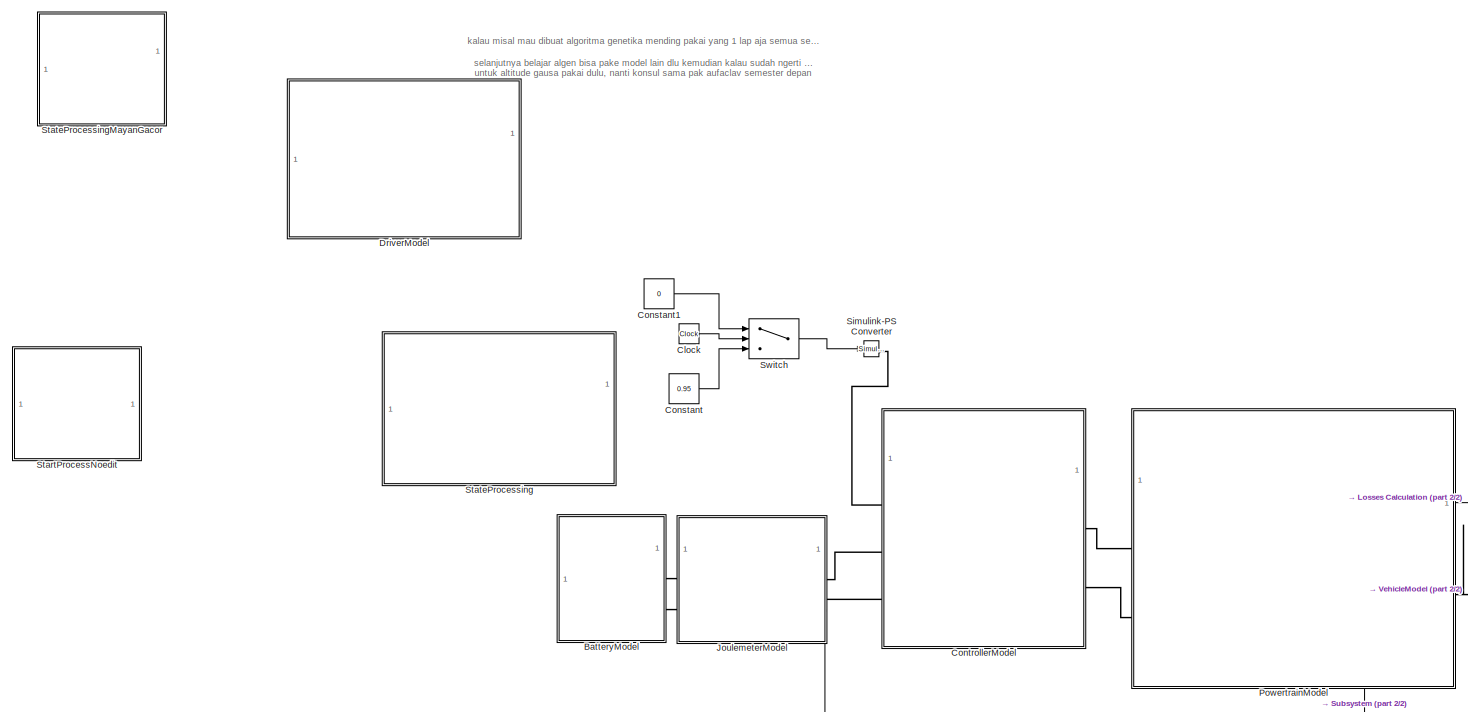
[diagram: root canvas - part 1/2, left side, full height]
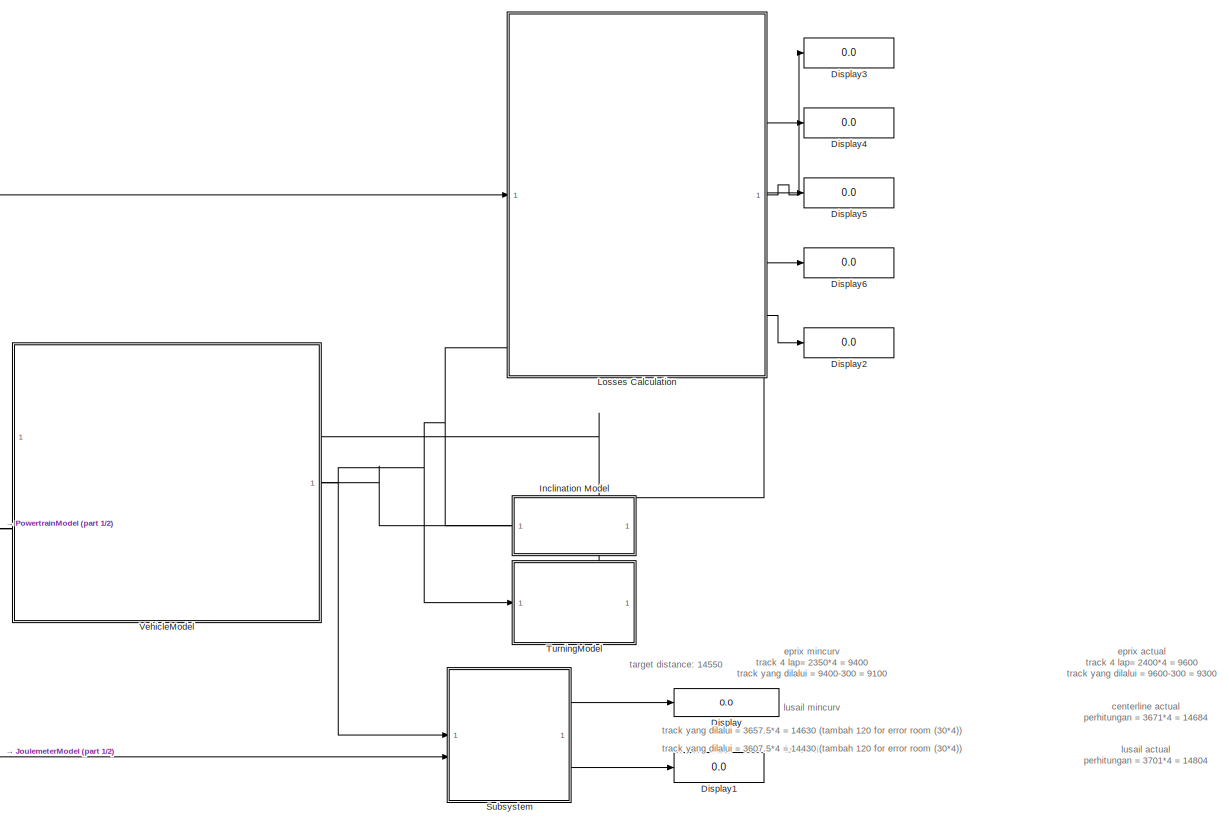
[diagram: root canvas - part 2/2, right side, full height]
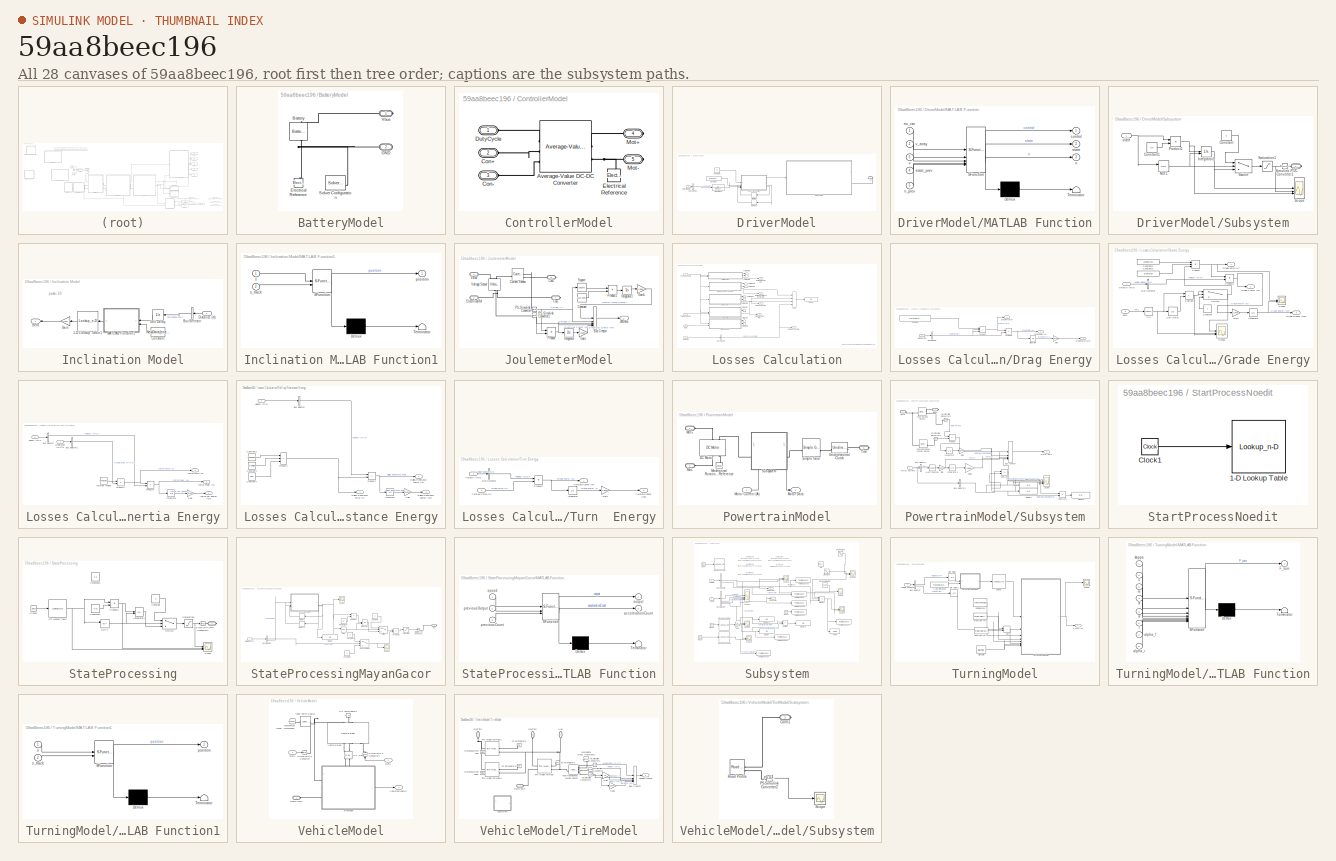
[diagram: thumbnail index - all 28 canvases of the model, root first then tree order]
MODEL slx_59aa8beec196
KIND model
CONFIG AbsTol = auto
CONFIG EnableMultiTasking = off
CONFIG FixedStep = auto
CONFIG MaxStep = 0.1
CONFIG MinStep = auto
CONFIG RelTol = 1e-3
CONFIG SampleTimeConstraint = Unconstrained
CONFIG SolverName = ode23t
CONFIG StartTime = 0.0
CONFIG StopTime = TimeMax
WORKSPACE source: mxarray member
WORKSPACE con = [27 27 27 27 27 27 27 28 28 27 27 28 ... (60 elements, 1x60)]
WORKSPACE liat = [28 27 27 29 29 28 28 28 29 29 28 30 ... (150 elements, 1x150)]
WORKSPACE novar = 30
WORKSPACE varray = [28 29 27 30 26 28 29 27 25 30 28 29 ... (60 elements, 1x60)]
BLOCK [SubSystem] BatteryModel
BLOCK [Reference] BatteryModel/Battery  REF=batteryecm_lib/Battery
  LibrarySourceBlock = ee_lib/Sources/Battery
  NameLocation = right
  SourceBlock = batteryecm_lib/Battery
  SourceType = Battery
BLOCK [Reference] BatteryModel/Electrical Reference  REF=fl_lib/Electrical/Electrical Elements/Electrical Reference
  NameLocation = right
  SourceBlock = fl_lib/Electrical/Electrical Elements/Electrical Reference
  SourceType = Electrical Reference
BLOCK [PMIOPort] BatteryModel/GND
  Port = 2
  Side = Right
BLOCK [Reference] BatteryModel/Solver Configuration  REF=nesl_utility/Solver
Configuration
  SourceBlock = nesl_utility/Solver\nConfiguration
  SourceType = Solver\nConfiguration
BLOCK [PMIOPort] BatteryModel/Vbus
  Side = Right
BLOCK [Clock] Clock
BLOCK [Constant] Constant
  Value = 0.95
BLOCK [Constant] Constant1
  Value = 0
BLOCK [SubSystem] ControllerModel
BLOCK [Reference] ControllerModel/Average-Value DC-DC Converter  REF=ee_lib/Semiconductors &
Converters/Converters/Average-Value DC-DC
Converter
  SourceBlock = ee_lib/Semiconductors &\nConverters/Converters/Average-Value DC-DC\nConverter
  SourceType = Average-Value DC-DC\nConverter
BLOCK [PMIOPort] ControllerModel/Con+
  Port = 2
  Side = Left
BLOCK [PMIOPort] ControllerModel/Con-
  Port = 3
  Side = Left
BLOCK [PMIOPort] ControllerModel/DutyCycle
  Side = Left
BLOCK [Reference] ControllerModel/Electrical Reference  REF=fl_lib/Electrical/Electrical Elements/Electrical Reference
  NameLocation = right
  SourceBlock = fl_lib/Electrical/Electrical Elements/Electrical Reference
  SourceType = Electrical Reference
BLOCK [PMIOPort] ControllerModel/Mot+
  Port = 4
  Side = Right
BLOCK [PMIOPort] ControllerModel/Mot-
  Port = 5
  Side = Right
BLOCK [Display] Display
  Decimation = 1
  Format = long
BLOCK [Display] Display1
  Decimation = 1
BLOCK [Display] Display2
  Decimation = 1
BLOCK [Display] Display3
  Decimation = 1
BLOCK [Display] Display4
  Decimation = 1
BLOCK [Display] Display5
  Decimation = 1
BLOCK [Display] Display6
  Decimation = 1
BLOCK [SubSystem] DriverModel
  Commented = on
  PortSchema = {"entries":[{"content":{"sides":[{"content":{},"type":"ConnectorPlacement.EquallySpacedRectSide","uuid":"89714f29-06d9-46e2-b121-09eafd11e56c"},{"content":{"connectorIds":["RConn1"],"side":"RIGHT"},"type":"ConnectorPlacement.EquallySpacedRectSide","uuid":"45c8a396-5542-43c7-a708-f386e71eba33"},{"content":{"side":"TOP"},"type":"ConnectorPlacement.EquallySpacedRectSide","uuid":"8953ccf4-c3cd-467e-b5...<+351ch>
BLOCK [BusSelector] DriverModel/Bus Selector
  OutputSignals = Velocity (km/h)
BLOCK [Constant] DriverModel/Constant
  Value = [29 29 28 29 28 28 28 29 29 28 29 28 28 29 28 28 29 27 28 28 28 28 28 28 28 28 28 28 28 28 28 28 29 28 29 28 27 28 29 27 28 28 28 28 28 28 28 29 28 29 28 28 29 29 29 29 27 29 28 28 28 28 28 29 29 28 28 28 29 29 24 23 23 23 23 23 24 25 24 23 23 23 23 23 24 23 23 23 23 23 24 24 24 24 24 24 24 23 24 23 23 24 24 24 24 23 23 23 23 23 23 23 24 24 23 23 23 24 24 23 24 24 25 24 24 22 23 23 23 23 23 23 23 ...<+21ch>
BLOCK [Constant] DriverModel/Constant1
  Value = 70
BLOCK [PMIOPort] DriverModel/DC
  NameLocation = top
  Side = Right
BLOCK [SubSystem] DriverModel/MATLAB Function
  ErrorFcn = Stateflow.Translate.translate
  PermitHierarchicalResolution = ExplicitOnly
  SFBlockType = MATLAB Function
  TreatAsAtomicUnit = on
BLOCK [Demux] DriverModel/MATLAB Function/ Demux 
  Outputs = 1
BLOCK [S-Function] DriverModel/MATLAB Function/ SFunction 
  EnableBusSupport = on
  FunctionName = sf_sfun
  PortCounts = [5 4]
  SFcnIsStateOwnerBlock = off
  SFunctionDeploymentMode = off
  Tag = Stateflow S-Function 8
BLOCK [Terminator] DriverModel/MATLAB Function/ Terminator 
BLOCK [Outport] DriverModel/MATLAB Function/control
BLOCK [Outport] DriverModel/MATLAB Function/n
  Port = 3
BLOCK [Inport] DriverModel/MATLAB Function/n_prev
  Port = 5
BLOCK [Inport] DriverModel/MATLAB Function/no_var
BLOCK [Outport] DriverModel/MATLAB Function/state
  Port = 2
BLOCK [Inport] DriverModel/MATLAB Function/state_prev
  Port = 4
BLOCK [Inport] DriverModel/MATLAB Function/v
  Port = 3
BLOCK [Inport] DriverModel/MATLAB Function/v_array
  Port = 2
BLOCK [Memory] DriverModel/Memory
  NameLocation = top
BLOCK [Memory] DriverModel/Memory1
  NameLocation = top
BLOCK [SubSystem] DriverModel/Subsystem
BLOCK [Constant] DriverModel/Subsystem/Constant
  Value = 0
BLOCK [Constant] DriverModel/Subsystem/Constant1
  Value = 0.6
BLOCK [PMIOPort] DriverModel/Subsystem/DC
  NameLocation = top
  Side = Right
BLOCK [Integrator] DriverModel/Subsystem/Integrator1
  ExternalReset = rising
BLOCK [Logic] DriverModel/Subsystem/NOT1
  AllPortsSameDT = off
  IconShape = distinctive
  Operator = NOT
  OutDataTypeStr = boolean
BLOCK [Product] DriverModel/Subsystem/Product1
BLOCK [Saturate] DriverModel/Subsystem/Saturation1
  LowerLimit = 0
  UpperLimit = 0.95
BLOCK [Scope] DriverModel/Subsystem/Scope
  Floating = off
  NumInputPorts = 3
  ScopeSpecificationString = Simulink.scopes.TimeScopeBlockCfg('CurrentConfiguration', extmgr.ConfigurationSet(extmgr.Configuration('Core','General UI',true),extmgr.Configuration('Core','Source UI',true),extmgr.Configuration('Sources','WiredSimulink',true,'DataLoggingVariableName','ScopeData1'),extmgr.Configuration('Visuals','Time Domain',true,'SerializedDisplays',{struct('MinYLimReal','-356.06419','MaxYLimReal','3204.57771',...<+3875ch>
BLOCK [Reference] DriverModel/Subsystem/Simulink-PS Converter1  REF=nesl_utility/Simulink-PS
Converter
  SourceBlock = nesl_utility/Simulink-PS\nConverter
  SourceType = Simulink-PS\nConverter
BLOCK [Switch] DriverModel/Subsystem/Switch
  Criteria = u2 ~= 0
  InputSameDT = off
  SaturateOnIntegerOverflow = off
BLOCK [Inport] DriverModel/Subsystem/state
BLOCK [TransferFcn] DriverModel/Transfer Fcn
  Denominator = [1e-10 1]
BLOCK [Inport] DriverModel/Velocity (km//h)
BLOCK [SubSystem] Inclination Model
  NameLocation = top
  PortSchema = {"entries":[{"content":{"sides":[{"content":{},"type":"ConnectorPlacement.EquallySpacedRectSide","uuid":"136e15b9-992d-4bd3-9ecd-22bc584851ec"},{"content":{"connectorIds":["In1","Out1"],"side":"RIGHT"},"type":"ConnectorPlacement.EquallySpacedRectSide","uuid":"21901198-73a1-4f2b-bd2a-55a4ec918fc9"},{"content":{"side":"TOP"},"type":"ConnectorPlacement.EquallySpacedRectSide","uuid":"96b62914-b1ee-40c...<+206ch>
BLOCK [Lookup_n-D] Inclination Model/1-D Lookup Table1
  BreakpointsForDimension1 = NewData{:,1}
  InputPortMap = u0
  InternalRulePriority = Speed
  NameLocation = top
  NumberOfTableDimensions = 1
  RndMeth = Simplest
  Table = NewData{:,2}
BLOCK [Outport] Inclination Model/Beta
  NameLocation = top
BLOCK [BusSelector] Inclination Model/Bus Selector
  NameLocation = top
  OutputSignals = Distance (m),Velocity (km/h)
BLOCK [Constant] Inclination Model/Constant
  NameLocation = top
  Value = NewData{end,1}
BLOCK [Inport] Inclination Model/Distance (m)
  NameLocation = top
BLOCK [Gain] Inclination Model/Gain
  Gain = 1/100
  NameLocation = top
BLOCK [SubSystem] Inclination Model/MATLAB Function1
  ErrorFcn = Stateflow.Translate.translate
  NameLocation = top
  PermitHierarchicalResolution = ExplicitOnly
  SFBlockType = MATLAB Function
  TreatAsAtomicUnit = on
BLOCK [Demux] Inclination Model/MATLAB Function1/ Demux 
  Outputs = 1
BLOCK [S-Function] Inclination Model/MATLAB Function1/ SFunction 
  EnableBusSupport = on
  FunctionName = sf_sfun
  PortCounts = [2 2]
  SFcnIsStateOwnerBlock = off
  SFunctionDeploymentMode = off
  Tag = Stateflow S-Function 5
BLOCK [Terminator] Inclination Model/MATLAB Function1/ Terminator 
BLOCK [Outport] Inclination Model/MATLAB Function1/position
BLOCK [Inport] Inclination Model/MATLAB Function1/s
BLOCK [Inport] Inclination Model/MATLAB Function1/s_track
  Port = 2
BLOCK [UnitDelay] Inclination Model/Unit Delay
  HasFrameUpgradeWarning = on
  NameLocation = top
  SampleTime = -1
BLOCK [SubSystem] JoulemeterModel
  PortSchema = {"entries":[{"content":{"sides":[{"content":{"connectorIds":["LConn1","LConn2"]},"type":"ConnectorPlacement.EquallySpacedRectSide","uuid":"5b7f183a-bf7a-4999-b582-2617b2cbf3b5"},{"content":{"connectorIds":["RConn1","RConn2"],"side":"RIGHT"},"type":"ConnectorPlacement.EquallySpacedRectSide","uuid":"60e6a297-a548-4f80-bd0a-fa1cc363ffaf"},{"content":{"side":"TOP"},"type":"ConnectorPlacement.EquallySp...<+395ch>
BLOCK [BusCreator] JoulemeterModel/Bus Creator
  DisplayOption = bar
  InheritFromInputs = on
  Inputs = 5
BLOCK [PMIOPort] JoulemeterModel/Con+
  NameLocation = top
  Port = 3
  Side = Right
BLOCK [PMIOPort] JoulemeterModel/Con-
  NameLocation = top
  Port = 4
  Side = Right
BLOCK [Constant] JoulemeterModel/Constant
  Value = 130/1000
BLOCK [Reference] JoulemeterModel/Current Sensor  REF=fl_lib/Electrical/Electrical Sensors/Current Sensor
  SourceBlock = fl_lib/Electrical/Electrical Sensors/Current Sensor
  SourceType = Current Sensor
BLOCK [PMIOPort] JoulemeterModel/ElecrtricalRef
  Port = 2
  Side = Left
BLOCK [Gain] JoulemeterModel/Gain
  Gain = 1/3600
BLOCK [Gain] JoulemeterModel/Gain1
  Gain = 1/3600
BLOCK [Integrator] JoulemeterModel/Integrator
BLOCK [Integrator] JoulemeterModel/Integrator1
BLOCK [Outport] JoulemeterModel/JMData
BLOCK [Reference] JoulemeterModel/PS-Simulink Converter  REF=nesl_utility/PS-Simulink
Converter
  SourceBlock = nesl_utility/PS-Simulink\nConverter
  SourceType = PS-Simulink\nConverter
BLOCK [Reference] JoulemeterModel/PS-Simulink Converter1  REF=nesl_utility/PS-Simulink
Converter
  SourceBlock = nesl_utility/PS-Simulink\nConverter
  SourceType = PS-Simulink\nConverter
BLOCK [Product] JoulemeterModel/Product
BLOCK [Product] JoulemeterModel/Product1
BLOCK [Math] JoulemeterModel/Square
  Operator = square
BLOCK [PMIOPort] JoulemeterModel/VBus
  Side = Left
BLOCK [Reference] JoulemeterModel/Voltage Sensor  REF=fl_lib/Electrical/Electrical Sensors/Voltage Sensor
  NameLocation = right
  SourceBlock = fl_lib/Electrical/Electrical Sensors/Voltage Sensor
  SourceType = Voltage Sensor
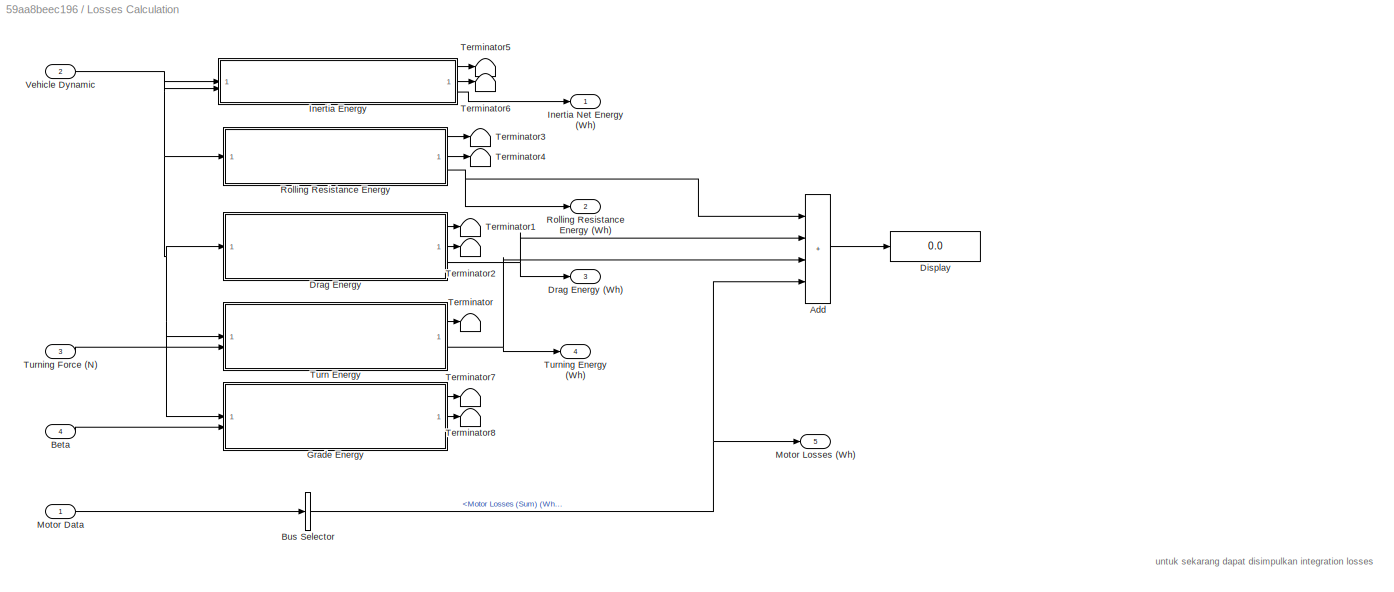
BLOCK [SubSystem] Losses Calculation
  Commented = on
  PortSchema = {"entries":[{"content":{"sides":[{"content":{"connectorIds":["In1"]},"type":"ConnectorPlacement.EquallySpacedRectSide","uuid":"1b3e4d1e-49e6-427b-8c70-72d72d3276fb"},{"content":{"connectorIds":["Out1","Out2","Out3","Out4","Out5"],"side":"RIGHT"},"type":"ConnectorPlacement.EquallySpacedRectSide","uuid":"db691218-5a1c-4b6a-822c-f6125d5f80f1"},{"content":{"side":"TOP"},"type":"ConnectorPlacement.Equa...<+411ch>
BLOCK [Sum] Losses Calculation/Add
  IconShape = rectangular
  Inputs = ++++
BLOCK [Inport] Losses Calculation/Beta
  Port = 4
BLOCK [BusSelector] Losses Calculation/Bus Selector
  OutputSignals = Motor Losses (Sum) (Wh)
BLOCK [Display] Losses Calculation/Display
  Decimation = 1
BLOCK [SubSystem] Losses Calculation/Drag Energy
BLOCK [Outport] Losses Calculation/Drag Energy (Wh)
  Port = 3
BLOCK [BusSelector] Losses Calculation/Drag Energy/Bus Selector
  OutputSignals = Velocity (m/s)
BLOCK [Constant] Losses Calculation/Drag Energy/Constant
  Value = 1/2*FrontArea*CD*AirDensity
BLOCK [Outport] Losses Calculation/Drag Energy/Drag Energy (Wh)
  Port = 3
BLOCK [Outport] Losses Calculation/Drag Energy/Drag Force (N)
BLOCK [Outport] Losses Calculation/Drag Energy/Drag Power (W)
  Port = 2
BLOCK [Gain] Losses Calculation/Drag Energy/Gain
  Gain = 1/3600
BLOCK [Integrator] Losses Calculation/Drag Energy/Integrator
BLOCK [Product] Losses Calculation/Drag Energy/Product
  Inputs = 3
BLOCK [Product] Losses Calculation/Drag Energy/Product1
BLOCK [Inport] Losses Calculation/Drag Energy/Velocity (m//s)
BLOCK [SubSystem] Losses Calculation/Grade Energy
  Commented = on
BLOCK [BusSelector] Losses Calculation/Grade Energy/Bus Selector
  OutputSignals = Velocity (m/s)
BLOCK [Constant] Losses Calculation/Grade Energy/Constant
  NameLocation = top
  Value = 0
BLOCK [Constant] Losses Calculation/Grade Energy/Constant2
  Value = VehicleMass
BLOCK [Constant] Losses Calculation/Grade Energy/Constant3
  Value = Gravitation
BLOCK [Gain] Losses Calculation/Grade Energy/Gain
  Gain = 1/3600
BLOCK [Outport] Losses Calculation/Grade Energy/Grade Energy (Wh)
  Port = 3
BLOCK [Outport] Losses Calculation/Grade Energy/Grade Force (N)
BLOCK [Outport] Losses Calculation/Grade Energy/Grade Power (W)
  Port = 2
BLOCK [Integrator] Losses Calculation/Grade Energy/Integrator
BLOCK [Product] Losses Calculation/Grade Energy/Product
  Inputs = 3
BLOCK [Product] Losses Calculation/Grade Energy/Product1
BLOCK [Scope] Losses Calculation/Grade Energy/Scope
  Floating = off
  NumInputPorts = 2
  ScopeSpecificationString = Simulink.scopes.TimeScopeBlockCfg('CurrentConfiguration', extmgr.ConfigurationSet(extmgr.Configuration('Core','General UI',true),extmgr.Configuration('Core','Source UI',true),extmgr.Configuration('Sources','WiredSimulink',true,'DataLoggingVariableName','ScopeData1'),extmgr.Configuration('Visuals','Time Domain',true,'SerializedDisplays',{struct('MinYLimReal','0.00337','MaxYLimReal','0.00709','YLabe...<+1519ch>
BLOCK [Scope] Losses Calculation/Grade Energy/Scope1
  Floating = off
  NumInputPorts = 3
  ScopeSpecificationString = Simulink.scopes.TimeScopeBlockCfg('CurrentConfiguration', extmgr.ConfigurationSet(extmgr.Configuration('Core','General UI',true),extmgr.Configuration('Core','Source UI',true),extmgr.Configuration('Sources','WiredSimulink',true,'DataLoggingVariableName','ScopeData2'),extmgr.Configuration('Visuals','Time Domain',true,'SerializedDisplays',{struct('MinYLimReal','0.0000056','MaxYLimReal','0.0000116','Y...<+3392ch>
BLOCK [Trigonometry] Losses Calculation/Grade Energy/Sin
BLOCK [Sum] Losses Calculation/Grade Energy/Subtract
  IconShape = rectangular
  Inputs = +-
BLOCK [Switch] Losses Calculation/Grade Energy/Switch
  InputSameDT = off
  SaturateOnIntegerOverflow = off
BLOCK [UnitDelay] Losses Calculation/Grade Energy/Unit Delay
  HasFrameUpgradeWarning = on
  SampleTime = -1
BLOCK [Inport] Losses Calculation/Grade Energy/Velocity (m//s)
BLOCK [Inport] Losses Calculation/Grade Energy/beta
  Port = 2
BLOCK [SubSystem] Losses Calculation/Inertia Energy
BLOCK [Inport] Losses Calculation/Inertia Energy/Acceleration (m//s^2)
  Port = 2
BLOCK [BusSelector] Losses Calculation/Inertia Energy/Bus Selector
  OutputSignals = Velocity (m/s)
BLOCK [BusSelector] Losses Calculation/Inertia Energy/Bus Selector1
  OutputSignals = Acceleration (m/s^2)
BLOCK [Gain] Losses Calculation/Inertia Energy/Gain
  Gain = 1/3600
BLOCK [Outport] Losses Calculation/Inertia Energy/Inertia Force (N)
BLOCK [Outport] Losses Calculation/Inertia Energy/Inertia Net Energy (Wh)
  Port = 3
BLOCK [Outport] Losses Calculation/Inertia Energy/Inertia Power (W)
  Port = 2
BLOCK [Integrator] Losses Calculation/Inertia Energy/Integrator
BLOCK [Product] Losses Calculation/Inertia Energy/Product2
BLOCK [Product] Losses Calculation/Inertia Energy/Product3
BLOCK [Constant] Losses Calculation/Inertia Energy/Total Net Weight
  Value = VehicleMass
BLOCK [Inport] Losses Calculation/Inertia Energy/Velocity (m//s)
BLOCK [Outport] Losses Calculation/Inertia Net Energy (Wh)
BLOCK [Inport] Losses Calculation/Motor Data
BLOCK [Outport] Losses Calculation/Motor Losses (Wh)
  Port = 5
BLOCK [SubSystem] Losses Calculation/Rolling Resistance Energy
BLOCK [Outport] Losses Calculation/Rolling Resistance Energy (Wh)
  Port = 2
BLOCK [BusSelector] Losses Calculation/Rolling Resistance Energy/Bus Selector
  OutputSignals = Velocity (m/s)
BLOCK [Constant] Losses Calculation/Rolling Resistance Energy/Constant2
  Value = VehicleMass
BLOCK [Constant] Losses Calculation/Rolling Resistance Energy/Constant3
  Value = Gravitation
BLOCK [Constant] Losses Calculation/Rolling Resistance Energy/Constant4
  Value = CRR
BLOCK [Gain] Losses Calculation/Rolling Resistance Energy/Gain
  Gain = 1/3600
BLOCK [Integrator] Losses Calculation/Rolling Resistance Energy/Integrator
BLOCK [Product] Losses Calculation/Rolling Resistance Energy/Product2
BLOCK [Product] Losses Calculation/Rolling Resistance Energy/Product3
  Inputs = 3
BLOCK [Outport] Losses Calculation/Rolling Resistance Energy/Rolling Resistance Energy (Wh)
  Port = 3
BLOCK [Outport] Losses Calculation/Rolling Resistance Energy/Rolling Resistance Force (N)
BLOCK [Outport] Losses Calculation/Rolling Resistance Energy/Rolling Resistance Power (W)
  Port = 2
BLOCK [Inport] Losses Calculation/Rolling Resistance Energy/Velocity (m//s)
BLOCK [Terminator] Losses Calculation/Terminator
BLOCK [Terminator] Losses Calculation/Terminator1
BLOCK [Terminator] Losses Calculation/Terminator2
BLOCK [Terminator] Losses Calculation/Terminator3
BLOCK [Terminator] Losses Calculation/Terminator4
BLOCK [Terminator] Losses Calculation/Terminator5
BLOCK [Terminator] Losses Calculation/Terminator6
BLOCK [Terminator] Losses Calculation/Terminator7
  Commented = on
BLOCK [Terminator] Losses Calculation/Terminator8
  Commented = on
BLOCK [SubSystem] Losses Calculation/Turn  Energy
BLOCK [BusSelector] Losses Calculation/Turn  Energy/Bus Selector
  OutputSignals = Velocity (m/s)
BLOCK [Gain] Losses Calculation/Turn  Energy/Gain
  Gain = 1/3600
BLOCK [Integrator] Losses Calculation/Turn  Energy/Integrator
BLOCK [Product] Losses Calculation/Turn  Energy/Product1
BLOCK [Outport] Losses Calculation/Turn  Energy/Turning Energy (Wh)
  Port = 2
BLOCK [Inport] Losses Calculation/Turn  Energy/Turning Force (N)
  Port = 2
BLOCK [Outport] Losses Calculation/Turn  Energy/Turning Power (W)
BLOCK [Inport] Losses Calculation/Turn  Energy/Velocity (m//s)
BLOCK [Outport] Losses Calculation/Turning Energy (Wh)
  Port = 4
BLOCK [Inport] Losses Calculation/Turning Force (N)
  Port = 3
BLOCK [Inport] Losses Calculation/Vehicle Dynamic
  Port = 2
BLOCK [SubSystem] PowertrainModel
  PortSchema = {"entries":[{"content":{"sides":[{"content":{"connectorIds":["LConn1","LConn2"]},"type":"ConnectorPlacement.EquallySpacedRectSide","uuid":"d69fc031-75de-46f6-9385-72f54b88d1cb"},{"content":{"connectorIds":["Out1","RConn1"],"side":"RIGHT"},"type":"ConnectorPlacement.EquallySpacedRectSide","uuid":"3d253726-be1e-4202-97ec-580b8e540a5a"},{"content":{"side":"TOP"},"type":"ConnectorPlacement.EquallySpac...<+392ch>
BLOCK [Reference] PowertrainModel/DC Motor  REF=ee_lib/Electromechanical/Brushed Motors/DC Motor
  AttributesFormatString = Maxon:RE_65_388987_48
  NameLocation = right
  SourceBlock = ee_lib/Electromechanical/Brushed Motors/DC Motor
  SourceType = DC Motor
  Tag = {'toolbox/physmod/elec/library/m/ee_lib_parts';'Electromechanical/Brushed_Motors/DC_Motor/Maxon/RE_65_388987_48.xml'}
BLOCK [Reference] PowertrainModel/Mechanical Rotational Reference  REF=fl_lib/Mechanical/Rotational Elements/Mechanical
Rotational Reference
  NameLocation = right
  SourceBlock = fl_lib/Mechanical/Rotational Elements/Mechanical\nRotational Reference
  SourceType = Mechanical\nRotational Reference
BLOCK [PMIOPort] PowertrainModel/Mot+
  Side = Left
BLOCK [PMIOPort] PowertrainModel/Mot-
  NameLocation = top
  Port = 2
  Side = Left
BLOCK [Inport] PowertrainModel/Motor Current (A)
BLOCK [Outport] PowertrainModel/Motor Data
BLOCK [Reference] PowertrainModel/Simple Gear  REF=sdl_lib/Gears/Simple Gear
  SourceBlock = sdl_lib/Gears/Simple Gear
  SourceType = Simple Gear
BLOCK [SubSystem] PowertrainModel/Subsystem
  PortSchema = {"entries":[{"content":{"sides":[{"content":{"connectorIds":["LConn1"]},"type":"ConnectorPlacement.EquallySpacedRectSide","uuid":"463aa60b-2f6b-4e46-abba-6391ca900fc1"},{"content":{"connectorIds":["RConn1"],"side":"RIGHT"},"type":"ConnectorPlacement.EquallySpacedRectSide","uuid":"74810462-e2fe-4474-8d12-7da7488b37b7"},{"content":{"side":"TOP"},"type":"ConnectorPlacement.EquallySpacedRectSide","uui...<+383ch>
BLOCK [BusCreator] PowertrainModel/Subsystem/Bus Creator
  DisplayOption = bar
  InheritFromInputs = on
  Inputs = 5
BLOCK [BusSelector] PowertrainModel/Subsystem/Bus Selector
  OutputSignals = Current (A)
BLOCK [BusSelector] PowertrainModel/Subsystem/Bus Selector1
  OutputSignals = Electrical Energy (Wh)
BLOCK [Display] PowertrainModel/Subsystem/Display
  Decimation = 1
BLOCK [Display] PowertrainModel/Subsystem/Display1
  Decimation = 1
BLOCK [Display] PowertrainModel/Subsystem/Display2
  Decimation = 1
BLOCK [Gain] PowertrainModel/Subsystem/Gain
  Gain = 1/3600
BLOCK [Gain] PowertrainModel/Subsystem/Gain1
  Gain = 1/3600
BLOCK [Reference] PowertrainModel/Subsystem/Ideal Rotational Motion Sensor  REF=fl_lib/Mechanical/Mechanical Sensors/Ideal Rotational
Motion Sensor
  SourceBlock = fl_lib/Mechanical/Mechanical Sensors/Ideal Rotational\nMotion Sensor
  SourceType = Ideal Rotational\nMotion Sensor
BLOCK [Reference] PowertrainModel/Subsystem/Ideal Torque Sensor  REF=fl_lib/Mechanical/Mechanical Sensors/Ideal Torque Sensor
  SourceBlock = fl_lib/Mechanical/Mechanical Sensors/Ideal Torque Sensor
  SourceType = Ideal Torque Sensor
BLOCK [Integrator] PowertrainModel/Subsystem/Integrator
BLOCK [Integrator] PowertrainModel/Subsystem/Integrator1
BLOCK [Math] PowertrainModel/Subsystem/Math Function
  Operator = square
BLOCK [Inport] PowertrainModel/Subsystem/Motor Current (A)
BLOCK [Outport] PowertrainModel/Subsystem/Motor Data
BLOCK [Reference] PowertrainModel/Subsystem/PS-Simulink Converter2  REF=nesl_utility/PS-Simulink
Converter
  SourceBlock = nesl_utility/PS-Simulink\nConverter
  SourceType = PS-Simulink\nConverter
BLOCK [Reference] PowertrainModel/Subsystem/PS-Simulink Converter3  REF=nesl_utility/PS-Simulink
Converter
  SourceBlock = nesl_utility/PS-Simulink\nConverter
  SourceType = PS-Simulink\nConverter
BLOCK [Product] PowertrainModel/Subsystem/Product
BLOCK [Gain] PowertrainModel/Subsystem/Rint
  Gain = 0.365
BLOCK [PMIOPort] PowertrainModel/Subsystem/Rotor
  NameLocation = top
  Side = Left
BLOCK [Scope] PowertrainModel/Subsystem/Scope
  Floating = off
  NumInputPorts = 3
  ScopeSpecificationString = Simulink.scopes.TimeScopeBlockCfg('CurrentConfiguration', extmgr.ConfigurationSet(extmgr.Configuration('Core','General UI',true),extmgr.Configuration('Core','Source UI',true),extmgr.Configuration('Sources','WiredSimulink',true,'DataLoggingVariableName','ScopeData1'),extmgr.Configuration('Visuals','Time Domain',true,'SerializedDisplays',{struct('MinYLimReal','-1.77803','MaxYLimReal','16.00224','YLa...<+1560ch>
BLOCK [PMIOPort] PowertrainModel/Subsystem/Shaft
  Port = 2
  Side = Right
BLOCK [Sum] PowertrainModel/Subsystem/Subtract
  IconShape = rectangular
  Inputs = +-
BLOCK [Sum] PowertrainModel/Subsystem/Subtract1
  IconShape = rectangular
  Inputs = +-
BLOCK [PMIOPort] PowertrainModel/Tire
  Port = 3
  Side = Right
BLOCK [Reference] PowertrainModel/Unidirectional Clutch  REF=sdl_lib/Clutches/Unidirectional
Clutch
  SourceBlock = sdl_lib/Clutches/Unidirectional\nClutch
  SourceType = Unidirectional\nClutch
BLOCK [Reference] Simulink-PS Converter  REF=nesl_utility/Simulink-PS
Converter
  SourceBlock = nesl_utility/Simulink-PS\nConverter
  SourceType = Simulink-PS\nConverter
BLOCK [SubSystem] StartProcessNoedit
  Commented = on
BLOCK [Lookup_n-D] StartProcessNoedit/1-D Lookup Table
  BreakpointsForDimension1 = StateData{1:1988,1}
  IndexSearchMethod = Linear search
  InputPortMap = u0
  InternalRulePriority = Speed
  InterpMethod = Flat
  NumberOfTableDimensions = 1
  RndMeth = Simplest
  Table = StateData{1:1988,6}
BLOCK [Clock] StartProcessNoedit/Clock1
  Decimation = 1
BLOCK [SubSystem] StateProcessing
  Commented = on
BLOCK [Lookup_n-D] StateProcessing/1-D Lookup Table
  BreakpointsForDimension1 = AttemptData{:,1}
  IndexSearchMethod = Linear search
  InputPortMap = u0
  InternalRulePriority = Speed
  InterpMethod = Flat
  NumberOfTableDimensions = 1
  RndMeth = Simplest
  Table = AttemptData{:,6}
BLOCK [Clock] StateProcessing/Clock1
  Decimation = 1
BLOCK [Constant] StateProcessing/Constant
  Value = 0
BLOCK [Constant] StateProcessing/Constant1
  Value = 0.81
BLOCK [Constant] StateProcessing/Constant2
  Commented = on
  Value = 0.6
BLOCK [PMIOPort] StateProcessing/DC
  NameLocation = top
  Side = Right
BLOCK [Integrator] StateProcessing/Integrator1
  ExternalReset = rising
BLOCK [Logic] StateProcessing/NOT1
  AllPortsSameDT = off
  IconShape = distinctive
  Operator = NOT
  OutDataTypeStr = boolean
BLOCK [Product] StateProcessing/Product1
BLOCK [Saturate] StateProcessing/Saturation1
  LowerLimit = 0
  UpperLimit = 0.95
BLOCK [Scope] StateProcessing/Scope
  Floating = off
  NumInputPorts = 3
  ScopeSpecificationString = Simulink.scopes.TimeScopeBlockCfg('CurrentConfiguration', extmgr.ConfigurationSet(extmgr.Configuration('Core','General UI',true),extmgr.Configuration('Core','Source UI',true),extmgr.Configuration('Sources','WiredSimulink',true,'DataLoggingVariableName','ScopeData1'),extmgr.Configuration('Visuals','Time Domain',true,'SerializedDisplays',{struct('MinYLimReal','-0.11875','MaxYLimReal','1.06875','YLab...<+3065ch>
BLOCK [Reference] StateProcessing/Simulink-PS Converter1  REF=nesl_utility/Simulink-PS
Converter
  SourceBlock = nesl_utility/Simulink-PS\nConverter
  SourceType = Simulink-PS\nConverter
BLOCK [Switch] StateProcessing/Switch
  Criteria = u2 ~= 0
  InputSameDT = off
  SaturateOnIntegerOverflow = off
BLOCK [SubSystem] StateProcessingMayanGacor
  Commented = on
BLOCK [BusSelector] StateProcessingMayanGacor/Bus Selector
  OutputSignals = Distance (m),Velocity (km/h)
BLOCK [Constant] StateProcessingMayanGacor/Constant
  Value = 0
BLOCK [Constant] StateProcessingMayanGacor/Constant3
  Value = 0
BLOCK [Constant] StateProcessingMayanGacor/Constant4
BLOCK [PMIOPort] StateProcessingMayanGacor/DC
  NameLocation = top
  Side = Right
BLOCK [Display] StateProcessingMayanGacor/Display
  Decimation = 1
BLOCK [Inport] StateProcessingMayanGacor/Distance (m)
BLOCK [Integrator] StateProcessingMayanGacor/Integrator
  ExternalReset = rising
BLOCK [SubSystem] StateProcessingMayanGacor/MATLAB Function
  ErrorFcn = Stateflow.Translate.translate
  PermitHierarchicalResolution = ExplicitOnly
  SFBlockType = MATLAB Function
  TreatAsAtomicUnit = on
BLOCK [Demux] StateProcessingMayanGacor/MATLAB Function/ Demux 
  Outputs = 1
BLOCK [S-Function] StateProcessingMayanGacor/MATLAB Function/ SFunction 
  EnableBusSupport = on
  FunctionName = sf_sfun
  PortCounts = [3 3]
  SFcnIsStateOwnerBlock = off
  SFunctionDeploymentMode = off
  Tag = Stateflow S-Function 3
BLOCK [Terminator] StateProcessingMayanGacor/MATLAB Function/ Terminator 
BLOCK [Outport] StateProcessingMayanGacor/MATLAB Function/accelerationCount
  Port = 2
BLOCK [Outport] StateProcessingMayanGacor/MATLAB Function/output
BLOCK [Inport] StateProcessingMayanGacor/MATLAB Function/previousCount
  Port = 3
BLOCK [Inport] StateProcessingMayanGacor/MATLAB Function/previousOutput
  Port = 2
BLOCK [Inport] StateProcessingMayanGacor/MATLAB Function/speed
BLOCK [Memory] StateProcessingMayanGacor/Memory
  NameLocation = top
BLOCK [Memory] StateProcessingMayanGacor/Memory1
  NameLocation = top
BLOCK [Logic] StateProcessingMayanGacor/NOT
  AllPortsSameDT = off
  IconShape = distinctive
  Operator = NOT
  OutDataTypeStr = boolean
BLOCK [Product] StateProcessingMayanGacor/Product
BLOCK [Product] StateProcessingMayanGacor/Product1
BLOCK [Constant] StateProcessingMayanGacor/Ramp SIgnal
  Value = 0.6
BLOCK [Saturate] StateProcessingMayanGacor/Saturation
  LowerLimit = 0
  UpperLimit = 0.95
BLOCK [Scope] StateProcessingMayanGacor/Scope
  Floating = off
  NumInputPorts = 1
  ScopeSpecificationString = Simulink.scopes.TimeScopeBlockCfg('CurrentConfiguration', extmgr.ConfigurationSet(extmgr.Configuration('Core','General UI',true),extmgr.Configuration('Core','Source UI',true),extmgr.Configuration('Sources','WiredSimulink',true,'DataLoggingVariableName','ScopeData2'),extmgr.Configuration('Visuals','Time Domain',true,'SerializedDisplays',{struct('MinYLimReal','0.75979','MaxYLimReal','1.05223','YLabe...<+1673ch>
BLOCK [Scope] StateProcessingMayanGacor/Scope1
  Floating = off
  NumInputPorts = 1
  ScopeSpecificationString = Simulink.scopes.TimeScopeBlockCfg('CurrentConfiguration', extmgr.ConfigurationSet(extmgr.Configuration('Core','General UI',true),extmgr.Configuration('Core','Source UI',true),extmgr.Configuration('Sources','WiredSimulink',true,'DataLoggingVariableName','ScopeData2'),extmgr.Configuration('Visuals','Time Domain',true,'SerializedDisplays',{struct('MinYLimReal','-0.125','MaxYLimReal','1.125','YLabelRe...<+1478ch>
BLOCK [Reference] StateProcessingMayanGacor/Simulink-PS Converter  REF=nesl_utility/Simulink-PS
Converter
  SourceBlock = nesl_utility/Simulink-PS\nConverter
  SourceType = Simulink-PS\nConverter
BLOCK [Switch] StateProcessingMayanGacor/Switch
  Criteria = u2 ~= 0
  InputSameDT = off
  SaturateOnIntegerOverflow = off
BLOCK [Switch] StateProcessingMayanGacor/distancetoglide
  Criteria = u2 > Threshold
  InputSameDT = off
  SaturateOnIntegerOverflow = off
  Threshold = DistancetoGlide
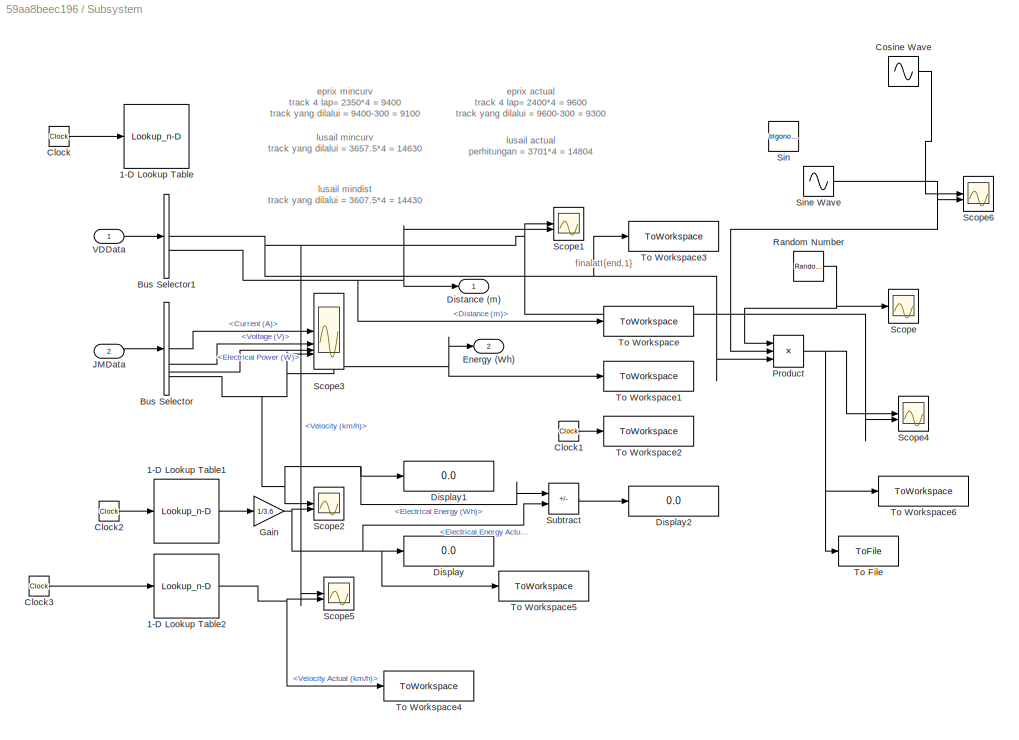
BLOCK [SubSystem] Subsystem
BLOCK [Lookup_n-D] Subsystem/1-D Lookup Table
  BreakpointsForDimension1 = finalatt{:,1}
  Commented = on
  InputPortMap = u0
  InternalRulePriority = Speed
  NumberOfTableDimensions = 1
  RndMeth = Simplest
  Table = finalatt{:,2}
BLOCK [Lookup_n-D] Subsystem/1-D Lookup Table1
  BreakpointsForDimension1 = AttemptData{:,1}
  InputPortMap = u0
  InternalRulePriority = Speed
  NumberOfTableDimensions = 1
  RndMeth = Simplest
  Table = AttemptData{:,5}
BLOCK [Lookup_n-D] Subsystem/1-D Lookup Table2
  BreakpointsForDimension1 = SpeedData{:,1}
  InputPortMap = u0
  InternalRulePriority = Speed
  NumberOfTableDimensions = 1
  RndMeth = Simplest
  Table = SpeedData{:,2}
BLOCK [BusSelector] Subsystem/Bus Selector
  OutputSignals = Current (A),Voltage (V),Electrical Power (W),Electrical Energy (Wh)
BLOCK [BusSelector] Subsystem/Bus Selector1
  OutputSignals = Velocity (km/h),Distance (m)
BLOCK [Clock] Subsystem/Clock
  Commented = on
BLOCK [Clock] Subsystem/Clock1
BLOCK [Clock] Subsystem/Clock2
BLOCK [Clock] Subsystem/Clock3
BLOCK [Sin] Subsystem/Cosine Wave
  Amplitude = 0.2
  Bias = 1
  Frequency = 0.03
  Phase = pi/2
  SampleTime = 0
BLOCK [Display] Subsystem/Display
  Decimation = 1
  Format = long
BLOCK [Display] Subsystem/Display1
  Decimation = 1
  Format = long
BLOCK [Display] Subsystem/Display2
  Decimation = 1
BLOCK [Outport] Subsystem/Distance (m)
BLOCK [Outport] Subsystem/Energy (Wh)
  Port = 2
BLOCK [Gain] Subsystem/Gain
  Gain = 1/3.6
BLOCK [Inport] Subsystem/JMData
  Port = 2
BLOCK [Product] Subsystem/Product
  Inputs = 3
BLOCK [RandomNumber] Subsystem/Random Number
  Mean = 1
  SampleTime = 1
  Seed = 93939393
  Variance = 0.0001
BLOCK [Scope] Subsystem/Scope
  Floating = off
  NumInputPorts = 1
  ScopeSpecificationString = Simulink.scopes.TimeScopeBlockCfg('CurrentConfiguration', extmgr.ConfigurationSet(extmgr.Configuration('Core','General UI',true),extmgr.Configuration('Core','Source UI',true),extmgr.Configuration('Sources','WiredSimulink',true,'DataLoggingVariableName','ScopeData1'),extmgr.Configuration('Visuals','Time Domain',true,'SerializedDisplays',{struct('MinYLimReal','0.95957','MaxYLimReal','1.04321','YLabe...<+1511ch>
BLOCK [Scope] Subsystem/Scope1
  Floating = off
  NumInputPorts = 2
  ScopeSpecificationString = Simulink.scopes.TimeScopeBlockCfg('CurrentConfiguration', extmgr.ConfigurationSet(extmgr.Configuration('Core','General UI',true),extmgr.Configuration('Core','Source UI',true),extmgr.Configuration('Sources','WiredSimulink',true,'DataLoggingVariableName','ScopeData1'),extmgr.Configuration('Visuals','Time Domain',true,'SerializedDisplays',{struct('MinYLimReal','-3.53614','MaxYLimReal','31.82525','YLa...<+2622ch>
BLOCK [Scope] Subsystem/Scope2
  Floating = off
  NumInputPorts = 2
  ScopeSpecificationString = Simulink.scopes.TimeScopeBlockCfg('CurrentConfiguration', extmgr.ConfigurationSet(extmgr.Configuration('Core','General UI',true),extmgr.Configuration('Core','Source UI',true),extmgr.Configuration('Sources','WiredSimulink',true,'DataLoggingVariableName','ScopeData2'),extmgr.Configuration('Visuals','Time Domain',true,'SerializedDisplays',{struct('MinYLimReal','-1.41042','MaxYLimReal','12.69375','YLa...<+1581ch>
BLOCK [Scope] Subsystem/Scope3
  Floating = off
  NumInputPorts = 4
  ScopeSpecificationString = Simulink.scopes.TimeScopeBlockCfg('CurrentConfiguration', extmgr.ConfigurationSet(extmgr.Configuration('Core','General UI',true),extmgr.Configuration('Core','Source UI',true),extmgr.Configuration('Sources','WiredSimulink',true,'DataLoggingVariableName','ScopeData3'),extmgr.Configuration('Visuals','Time Domain',true,'SerializedDisplays',{struct('MinYLimReal','-5.04657','MaxYLimReal','45.41912','YLa...<+4242ch>
BLOCK [Scope] Subsystem/Scope4
  Floating = off
  NumInputPorts = 2
  ScopeSpecificationString = Simulink.scopes.TimeScopeBlockCfg('CurrentConfiguration', extmgr.ConfigurationSet(extmgr.Configuration('Core','General UI',true),extmgr.Configuration('Core','Source UI',true),extmgr.Configuration('Sources','WiredSimulink',true,'DataLoggingVariableName','ScopeData2'),extmgr.Configuration('Visuals','Time Domain',true,'SerializedDisplays',{struct('MinYLimReal','-0.38657','MaxYLimReal','34.21623','YLa...<+1664ch>
BLOCK [Scope] Subsystem/Scope5
  Floating = off
  NumInputPorts = 2
  ScopeSpecificationString = Simulink.scopes.TimeScopeBlockCfg('CurrentConfiguration', extmgr.ConfigurationSet(extmgr.Configuration('Core','General UI',true),extmgr.Configuration('Core','Source UI',true),extmgr.Configuration('Sources','WiredSimulink',true,'DataLoggingVariableName','ScopeData3'),extmgr.Configuration('Visuals','Time Domain',true,'SerializedDisplays',{struct('MinYLimReal','-18.26829','MaxYLimReal','40.27586','YL...<+1928ch>
BLOCK [Scope] Subsystem/Scope6
  Floating = off
  NumInputPorts = 2
  ScopeSpecificationString = Simulink.scopes.TimeScopeBlockCfg('CurrentConfiguration', extmgr.ConfigurationSet(extmgr.Configuration('Core','General UI',true),extmgr.Configuration('Core','Source UI',true),extmgr.Configuration('Sources','WiredSimulink',true,'DataLoggingVariableName','ScopeData1'),extmgr.Configuration('Visuals','Time Domain',true,'SerializedDisplays',{struct('MinYLimReal','0.75','MaxYLimReal','1.25','YLabelReal'...<+1497ch>
BLOCK [Trigonometry] Subsystem/Sin
BLOCK [Sin] Subsystem/Sine Wave
  Amplitude = 0.15
  Bias = 1
  Frequency = 0.03
  SampleTime = 0
BLOCK [Sum] Subsystem/Subtract
  IconShape = rectangular
  Inputs = +-
BLOCK [ToFile] Subsystem/To File
  SaveFormat = Timeseries
BLOCK [ToWorkspace] Subsystem/To Workspace
  FixptAsFi = on
  MaxDataPoints = inf
  SampleTime = -1
  Save2DSignal = 2-D array (concatenate along first dimension)
  VariableName = distance
BLOCK [ToWorkspace] Subsystem/To Workspace1
  FixptAsFi = on
  MaxDataPoints = inf
  SampleTime = -1
  Save2DSignal = 2-D array (concatenate along first dimension)
  VariableName = Wh
BLOCK [ToWorkspace] Subsystem/To Workspace2
  FixptAsFi = on
  MaxDataPoints = inf
  SampleTime = -1
  Save2DSignal = 2-D array (concatenate along first dimension)
  VariableName = time
BLOCK [ToWorkspace] Subsystem/To Workspace3
  FixptAsFi = on
  MaxDataPoints = inf
  SampleTime = -1
  Save2DSignal = 2-D array (concatenate along first dimension)
  VariableName = velocity
BLOCK [ToWorkspace] Subsystem/To Workspace4
  FixptAsFi = on
  MaxDataPoints = inf
  SampleTime = -1
  SaveFormat = Timeseries
  VariableName = VelocityActual
BLOCK [ToWorkspace] Subsystem/To Workspace5
  FixptAsFi = on
  MaxDataPoints = inf
  SampleTime = -1
  SaveFormat = Timeseries
  VariableName = WhActual
BLOCK [ToWorkspace] Subsystem/To Workspace6
  Decimation = 10
  FixptAsFi = on
  MaxDataPoints = inf
  SampleTime = -1
  SaveFormat = Timeseries
  VariableName = rollinggenerate
BLOCK [Inport] Subsystem/VDData
BLOCK [Switch] Switch
  Criteria = u2 > Threshold
  InputSameDT = off
  SaturateOnIntegerOverflow = off
  Threshold = 200
BLOCK [SubSystem] TurningModel
  PortSchema = {"entries":[{"content":{"sides":[{"content":{"connectorIds":["Out1","In1"]},"type":"ConnectorPlacement.EquallySpacedRectSide","uuid":"d4692372-87e9-4ce8-a189-eb5e05ef7ce2"},{"content":{"side":"RIGHT"},"type":"ConnectorPlacement.EquallySpacedRectSide","uuid":"c6a7fc47-7281-4ca2-ad0e-ceadd6b2be83"},{"content":{"side":"TOP"},"type":"ConnectorPlacement.EquallySpacedRectSide","uuid":"b8ded78c-a4e7-43a6...<+205ch>
BLOCK [Constant] TurningModel/1 Lap Distance
  Value = TrackData{end,1}
BLOCK [Sum] TurningModel/Add
  IconShape = rectangular
BLOCK [BusSelector] TurningModel/Bus Selector
  OutputSignals = Distance (m),Velocity (m/s)
BLOCK [Outport] TurningModel/F Turn (N)
BLOCK [Constant] TurningModel/FrontAxle (m)
  Value = FrontAxle/1000
BLOCK [Lookup_n-D] TurningModel/Kappa
  BreakpointsForDimension1 = TrackData{:,1}
  InputPortMap = u0
  InternalRulePriority = Speed
  InterpMethod = Flat
  NumberOfTableDimensions = 1
  RndMeth = Simplest
  Table = TrackData{:,4}
BLOCK [SubSystem] TurningModel/MATLAB Function
  ErrorFcn = Stateflow.Translate.translate
  PermitHierarchicalResolution = ExplicitOnly
  SFBlockType = MATLAB Function
  TreatAsAtomicUnit = on
BLOCK [Demux] TurningModel/MATLAB Function/ Demux 
  Outputs = 1
BLOCK [S-Function] TurningModel/MATLAB Function/ SFunction 
  EnableBusSupport = on
  FunctionName = sf_sfun
  PortCounts = [8 2]
  SFcnIsStateOwnerBlock = off
  SFunctionDeploymentMode = off
  Tag = Stateflow S-Function 2
BLOCK [Terminator] TurningModel/MATLAB Function/ Terminator 
BLOCK [Outport] TurningModel/MATLAB Function/F_turn
BLOCK [Inport] TurningModel/MATLAB Function/alpha_f
  Port = 7
BLOCK [Inport] TurningModel/MATLAB Function/alpha_r
  Port = 8
BLOCK [Inport] TurningModel/MATLAB Function/kappa
BLOCK [Inport] TurningModel/MATLAB Function/l
  Port = 6
BLOCK [Inport] TurningModel/MATLAB Function/m
  Port = 3
BLOCK [Inport] TurningModel/MATLAB Function/sf
  Port = 4
BLOCK [Inport] TurningModel/MATLAB Function/sr
  Port = 5
BLOCK [Inport] TurningModel/MATLAB Function/v
  Port = 2
BLOCK [SubSystem] TurningModel/MATLAB Function1
  ErrorFcn = Stateflow.Translate.translate
  PermitHierarchicalResolution = ExplicitOnly
  SFBlockType = MATLAB Function
  TreatAsAtomicUnit = on
BLOCK [Demux] TurningModel/MATLAB Function1/ Demux 
  Outputs = 1
BLOCK [S-Function] TurningModel/MATLAB Function1/ SFunction 
  EnableBusSupport = on
  FunctionName = sf_sfun
  PortCounts = [2 2]
  SFcnIsStateOwnerBlock = off
  SFunctionDeploymentMode = off
  Tag = Stateflow S-Function 1
BLOCK [Terminator] TurningModel/MATLAB Function1/ Terminator 
BLOCK [Outport] TurningModel/MATLAB Function1/position
BLOCK [Inport] TurningModel/MATLAB Function1/s
BLOCK [Inport] TurningModel/MATLAB Function1/s_track
  Port = 2
BLOCK [Constant] TurningModel/RearAxle (m)
  Value = RearAxle/1000
BLOCK [Scope] TurningModel/Scope
  Floating = off
  NumInputPorts = 1
  ScopeSpecificationString = Simulink.scopes.TimeScopeBlockCfg('CurrentConfiguration', extmgr.ConfigurationSet(extmgr.Configuration('Core','General UI',true),extmgr.Configuration('Core','Source UI',true),extmgr.Configuration('Sources','WiredSimulink',true,'DataLoggingVariableName','ScopeData1'),extmgr.Configuration('Visuals','Time Domain',true,'SerializedDisplays',{struct('MinYLimReal','-0.91243','MaxYLimReal','8.21188','YLab...<+1490ch>
BLOCK [Constant] TurningModel/SlipAngle
  Value = SlipAngle
BLOCK [UnitDelay] TurningModel/Unit Delay
  HasFrameUpgradeWarning = on
  SampleTime = -1
BLOCK [UnitDelay] TurningModel/Unit Delay1
  HasFrameUpgradeWarning = on
  SampleTime = -1
BLOCK [Inport] TurningModel/Vehicle Dynamic
BLOCK [Constant] TurningModel/VehicleMass
  Value = VehicleMass
BLOCK [SubSystem] VehicleModel
  PortSchema = {"entries":[{"content":{"sides":[{"content":{"connectorIds":["LConn1"]},"type":"ConnectorPlacement.EquallySpacedRectSide","uuid":"93bb66e9-fe50-4a31-bb73-2398351c668b"},{"content":{"connectorIds":["In1","In2","Out1"],"side":"RIGHT"},"type":"ConnectorPlacement.EquallySpacedRectSide","uuid":"0cd3e741-0813-4587-beb9-127565be059b"},{"content":{"side":"TOP"},"type":"ConnectorPlacement.EquallySpacedRect...<+237ch>
BLOCK [Inport] VehicleModel/Beta
  NameLocation = top
  Port = 2
BLOCK [PMIOPort] VehicleModel/FromClutch
  Side = Left
BLOCK [Inport] VehicleModel/Fturn
BLOCK [Reference] VehicleModel/Ideal Force Source  REF=fl_lib/Mechanical/Mechanical Sources/Ideal Force Source
  NameLocation = top
  SourceBlock = fl_lib/Mechanical/Mechanical Sources/Ideal Force Source
  SourceType = Ideal Force Source
BLOCK [Reference] VehicleModel/Mechanical Translational Reference  REF=fl_lib/Mechanical/Translational
Elements/Mechanical
Translational
Reference
  SourceBlock = fl_lib/Mechanical/Translational\nElements/Mechanical\nTranslational\nReference
  SourceType = Mechanical\nTranslational\nReference
BLOCK [Reference] VehicleModel/PS Gain  REF=fl_lib/Physical Signals/Functions/PS Gain
  NameLocation = left
  SourceBlock = fl_lib/Physical Signals/Functions/PS Gain
  SourceType = PS Gain
BLOCK [Reference] VehicleModel/PS Terminator3  REF=fl_lib/Physical Signals/Sinks/PS Terminator
  NameLocation = right
  SourceBlock = fl_lib/Physical Signals/Sinks/PS Terminator
  SourceType = PS Terminator
BLOCK [Reference] VehicleModel/Simulink-PS Converter  REF=nesl_utility/Simulink-PS
Converter
  SourceBlock = nesl_utility/Simulink-PS\nConverter
  SourceType = Simulink-PS\nConverter
BLOCK [Reference] VehicleModel/Simulink-PS Converter1  REF=nesl_utility/Simulink-PS
Converter
  NameLocation = right
  SourceBlock = nesl_utility/Simulink-PS\nConverter
  SourceType = Simulink-PS\nConverter
BLOCK [SubSystem] VehicleModel/TireModel
  PortSchema = {"entries":[{"content":{"sides":[{"content":{"connectorIds":["LConn1","LConn2"]},"type":"ConnectorPlacement.EquallySpacedRectSide","uuid":"ad88246c-79e4-4500-822e-5fea39c5896c"},{"content":{"connectorIds":["Out1"],"side":"RIGHT"},"type":"ConnectorPlacement.EquallySpacedRectSide","uuid":"913d52ca-54a5-4560-b3df-e1f57975974a"},{"content":{"connectorIds":["LConn3","LConn4"],"side":"TOP"},"type":"Conn...<+269ch>
BLOCK [BusCreator] VehicleModel/TireModel/Bus Creator
  DisplayOption = bar
  InheritFromInputs = on
  Inputs = 5
BLOCK [PMIOPort] VehicleModel/TireModel/FromClutch
  Port = 2
  Side = Left
BLOCK [PMIOPort] VehicleModel/TireModel/FrontTire
  NameLocation = left
  Port = 4
  Side = Left
BLOCK [Gain] VehicleModel/TireModel/Gain
  Gain = 3.6
BLOCK [Gain] VehicleModel/TireModel/Gain1
  Gain = 1/1000
BLOCK [PMIOPort] VehicleModel/TireModel/Hub
  NameLocation = left
  Side = Left
BLOCK [Reference] VehicleModel/TireModel/Ideal Translational Motion Sensor  REF=fl_lib/Mechanical/Mechanical Sensors/Ideal Translational
Motion Sensor
  SourceBlock = fl_lib/Mechanical/Mechanical Sensors/Ideal Translational\nMotion Sensor
  SourceType = Ideal Translational\nMotion Sensor
BLOCK [Reference] VehicleModel/TireModel/Mechanical Translational Reference  REF=fl_lib/Mechanical/Translational
Elements/Mechanical
Translational
Reference
  NameLocation = left
  SourceBlock = fl_lib/Mechanical/Translational\nElements/Mechanical\nTranslational\nReference
  SourceType = Mechanical\nTranslational\nReference
BLOCK [Reference] VehicleModel/TireModel/PS Terminator1  REF=fl_lib/Physical Signals/Sinks/PS Terminator
  SourceBlock = fl_lib/Physical Signals/Sinks/PS Terminator
  SourceType = PS Terminator
BLOCK [Reference] VehicleModel/TireModel/PS Terminator2  REF=fl_lib/Physical Signals/Sinks/PS Terminator
  SourceBlock = fl_lib/Physical Signals/Sinks/PS Terminator
  SourceType = PS Terminator
BLOCK [Reference] VehicleModel/TireModel/PS Terminator3  REF=fl_lib/Physical Signals/Sinks/PS Terminator
  SourceBlock = fl_lib/Physical Signals/Sinks/PS Terminator
  SourceType = PS Terminator
BLOCK [Reference] VehicleModel/TireModel/PS-Simulink Converter  REF=nesl_utility/PS-Simulink
Converter
  SourceBlock = nesl_utility/PS-Simulink\nConverter
  SourceType = PS-Simulink\nConverter
BLOCK [Reference] VehicleModel/TireModel/PS-Simulink Converter1  REF=nesl_utility/PS-Simulink
Converter
  SourceBlock = nesl_utility/PS-Simulink\nConverter
  SourceType = PS-Simulink\nConverter
BLOCK [Reference] VehicleModel/TireModel/PS-Simulink Converter2  REF=nesl_utility/PS-Simulink
Converter
  SourceBlock = nesl_utility/PS-Simulink\nConverter
  SourceType = PS-Simulink\nConverter
BLOCK [PMIOPort] VehicleModel/TireModel/RearTire
  NameLocation = left
  Port = 3
  Side = Left
BLOCK [Reference] VehicleModel/TireModel/Rotational Free End  REF=fl_lib/Mechanical/Rotational Elements/Rotational Free End
  SourceBlock = fl_lib/Mechanical/Rotational Elements/Rotational Free End
  SourceType = Rotational Free End
BLOCK [Reference] VehicleModel/TireModel/Rotational Free End1  REF=fl_lib/Mechanical/Rotational Elements/Rotational Free End
  SourceBlock = fl_lib/Mechanical/Rotational Elements/Rotational Free End
  SourceType = Rotational Free End
BLOCK [SubSystem] VehicleModel/TireModel/Subsystem
  Commented = on
  NameLocation = top
BLOCK [PMIOPort] VehicleModel/TireModel/Subsystem/Conn1
  Side = Right
BLOCK [Reference] VehicleModel/TireModel/Subsystem/PS-Simulink Converter2  REF=nesl_utility/PS-Simulink
Converter
  SourceBlock = nesl_utility/PS-Simulink\nConverter
  SourceType = PS-Simulink\nConverter
BLOCK [Reference] VehicleModel/TireModel/Subsystem/Road Profile  REF=sdl_lib/Tires & Vehicles/Road Profile
  SourceBlock = sdl_lib/Tires & Vehicles/Road Profile
  SourceType = Road Profile
BLOCK [Scope] VehicleModel/TireModel/Subsystem/Scope
  Floating = off
  NumInputPorts = 1
  ScopeSpecificationString = Simulink.scopes.TimeScopeBlockCfg('CurrentConfiguration', extmgr.ConfigurationSet(extmgr.Configuration('Core','General UI',true),extmgr.Configuration('Core','Source UI',true),extmgr.Configuration('Sources','WiredSimulink',true,'DataLoggingVariableName','ScopeData1'),extmgr.Configuration('Visuals','Time Domain',true,'SerializedDisplays',{struct('MinYLimReal','-0.01432','MaxYLimReal','0.01089','YLab...<+1637ch>
BLOCK [Reference] VehicleModel/TireModel/Tire (Magic Formula)  REF=sdl_lib/Tires & Vehicles/Tire (Magic Formula)
  SourceBlock = sdl_lib/Tires & Vehicles/Tire (Magic Formula)
  SourceType = Tire (Magic Formula)
BLOCK [Reference] VehicleModel/TireModel/Tire (Magic Formula)1  REF=sdl_lib/Tires & Vehicles/Tire (Magic Formula)
  SourceBlock = sdl_lib/Tires & Vehicles/Tire (Magic Formula)
  SourceType = Tire (Magic Formula)
BLOCK [Reference] VehicleModel/TireModel/Tire (Magic Formula)2  REF=sdl_lib/Tires & Vehicles/Tire (Magic Formula)
  SourceBlock = sdl_lib/Tires & Vehicles/Tire (Magic Formula)
  SourceType = Tire (Magic Formula)
BLOCK [Outport] VehicleModel/TireModel/VehicleDynamic
BLOCK [Reference] VehicleModel/Vehicle Body  REF=sdl_lib/Tires & Vehicles/Vehicle Body
  NameLocation = right
  SourceBlock = sdl_lib/Tires & Vehicles/Vehicle Body
  SourceType = Vehicle Body
BLOCK [Outport] VehicleModel/VehicleDynamic
ANNOTATION (root): centerline actual perhitungan = 3671*4 = 14684
ANNOTATION (root): eprix actual track 4 lap= 2400*4 = 9600 track yang dilalui = 9600-300 = 9300
ANNOTATION (root): eprix mincurv track 4 lap= 2350*4 = 9400 track yang dilalui = 9400-300 = 9100
ANNOTATION (root): kalau misal mau dibuat algoritma genetika mending pakai yang 1 lap aja semua setingannya diubah ke 1 lap biar lebih enak, yang jelas sampai sini model nya sudah dapat dikatakan valid selanjutnya belajar algen bisa pake model lain dlu kemudian kalau sudah ngerti cara pakainya baru otak atik di model kendaraan ini untuk altitude gausa pakai dulu, nanti konsul sama pak aufaclav semester depan untuk a...<+36ch>
ANNOTATION (root): lusail actual perhitungan = 3701*4 = 14804
ANNOTATION (root): lusail mincurv track yang dilalui = 3657.5*4 = 14630 (tambah 120 for error room (30*4))
ANNOTATION (root): lusail mindist track yang dilalui = 3607.5*4 = 14430 (tambah 120 for error room (30*4))
ANNOTATION (root): target distance: 14550
ANNOTATION Inclination Model: pakai 20
ANNOTATION Losses Calculation: untuk sekarang dapat disimpulkan integration losses
ANNOTATION Subsystem: eprix actual track 4 lap= 2400*4 = 9600 track yang dilalui = 9600-300 = 9300
ANNOTATION Subsystem: eprix mincurv track 4 lap= 2350*4 = 9400 track yang dilalui = 9400-300 = 9100
ANNOTATION Subsystem: finalatt{end,1}
ANNOTATION Subsystem: lusail actual perhitungan = 3701*4 = 14804
ANNOTATION Subsystem: lusail mincurv track yang dilalui = 3657.5*4 = 14630
ANNOTATION Subsystem: lusail mindist track yang dilalui = 3607.5*4 = 14430
LINE Clock:1 -> Switch:2
LINE Constant1:1 -> Switch:1
LINE Constant:1 -> Switch:3
LINE DriverModel/Bus Selector:1 -> DriverModel/Transfer Fcn:1
LINE DriverModel/Constant1:1 -> DriverModel/MATLAB Function:1
LINE DriverModel/Constant:1 -> DriverModel/MATLAB Function:2
LINE DriverModel/MATLAB Function:1 -> DriverModel/Subsystem:1
LINE DriverModel/MATLAB Function:2 -> DriverModel/Memory1:1
LINE DriverModel/MATLAB Function:3 -> DriverModel/Memory:1
LINE DriverModel/Memory1:1 -> DriverModel/MATLAB Function:4
LINE DriverModel/Memory:1 -> DriverModel/MATLAB Function:5
LINE DriverModel/Subsystem/Constant1:1 -> DriverModel/Subsystem/Product1:2
LINE DriverModel/Subsystem/Constant:1 -> DriverModel/Subsystem/Switch:1
NET DriverModel/Subsystem/Integrator1:1 -> DriverModel/Subsystem/Scope:1, DriverModel/Subsystem/Switch:3
NET DriverModel/Subsystem/NOT1:1 -> DriverModel/Subsystem/Integrator1:2, DriverModel/Subsystem/Switch:2
NET DriverModel/Subsystem/Product1:1 -> DriverModel/Subsystem/Integrator1:1, DriverModel/Subsystem/Scope:3
NET DriverModel/Subsystem/Saturation1:1 -> DriverModel/Subsystem/Scope:2, DriverModel/Subsystem/Simulink-PS Converter1:1
LINE DriverModel/Subsystem/Switch:1 -> DriverModel/Subsystem/Saturation1:1
NET DriverModel/Subsystem/state:1 -> DriverModel/Subsystem/NOT1:1, DriverModel/Subsystem/Product1:1
LINE DriverModel/Transfer Fcn:1 -> DriverModel/MATLAB Function:3
LINE DriverModel/Velocity (km//h):1 -> DriverModel/Bus Selector:1
LINE Inclination Model/1-D Lookup Table1:1 -> Inclination Model/Gain:1
LINE Inclination Model/Bus Selector:1 -> Inclination Model/Unit Delay:1
LINE Inclination Model/Constant:1 -> Inclination Model/MATLAB Function1:2
LINE Inclination Model/Distance (m):1 -> Inclination Model/Bus Selector:1
LINE Inclination Model/Gain:1 -> Inclination Model/Beta:1
LINE Inclination Model/MATLAB Function1:1 -> Inclination Model/1-D Lookup Table1:1
LINE Inclination Model/Unit Delay:1 -> Inclination Model/MATLAB Function1:1
LINE Inclination Model:1 -> VehicleModel:2
LINE JoulemeterModel/Bus Creator:1 -> JoulemeterModel/JMData:1
LINE JoulemeterModel/Constant:1 -> JoulemeterModel/Product1:2
LINE JoulemeterModel/Gain1:1 -> JoulemeterModel/Bus Creator:1
LINE JoulemeterModel/Gain:1 -> JoulemeterModel/Bus Creator:5
LINE JoulemeterModel/Integrator1:1 -> JoulemeterModel/Gain1:1
LINE JoulemeterModel/Integrator:1 -> JoulemeterModel/Gain:1
NET JoulemeterModel/PS-Simulink Converter1:1 -> JoulemeterModel/Bus Creator:3, JoulemeterModel/Product:2
NET JoulemeterModel/PS-Simulink Converter:1 -> JoulemeterModel/Bus Creator:2, JoulemeterModel/Product:1, JoulemeterModel/Square:1
LINE JoulemeterModel/Product1:1 -> JoulemeterModel/Integrator1:1
NET JoulemeterModel/Product:1 -> JoulemeterModel/Bus Creator:4, JoulemeterModel/Integrator:1
LINE JoulemeterModel/Square:1 -> JoulemeterModel/Product1:1
NET JoulemeterModel:1 -> PowertrainModel:1, Subsystem:2
LINE Losses Calculation/Add:1 -> Losses Calculation/Display:1
LINE Losses Calculation/Beta:1 -> Losses Calculation/Grade Energy:2
NET Losses Calculation/Bus Selector:1 -> Losses Calculation/Add:4, Losses Calculation/Motor Losses (Wh):1
NET Losses Calculation/Drag Energy/Bus Selector:1 -> Losses Calculation/Drag Energy/Product1:2, Losses Calculation/Drag Energy/Product:2, Losses Calculation/Drag Energy/Product:3
LINE Losses Calculation/Drag Energy/Constant:1 -> Losses Calculation/Drag Energy/Product:1
LINE Losses Calculation/Drag Energy/Gain:1 -> Losses Calculation/Drag Energy/Drag Energy (Wh):1
LINE Losses Calculation/Drag Energy/Integrator:1 -> Losses Calculation/Drag Energy/Gain:1
NET Losses Calculation/Drag Energy/Product1:1 -> Losses Calculation/Drag Energy/Drag Power (W):1, Losses Calculation/Drag Energy/Integrator:1
NET Losses Calculation/Drag Energy/Product:1 -> Losses Calculation/Drag Energy/Drag Force (N):1, Losses Calculation/Drag Energy/Product1:1
LINE Losses Calculation/Drag Energy/Velocity (m//s):1 -> Losses Calculation/Drag Energy/Bus Selector:1
LINE Losses Calculation/Drag Energy:1 -> Losses Calculation/Terminator1:1
LINE Losses Calculation/Drag Energy:2 -> Losses Calculation/Terminator2:1
NET Losses Calculation/Drag Energy:3 -> Losses Calculation/Add:2, Losses Calculation/Drag Energy (Wh):1
LINE Losses Calculation/Grade Energy/Bus Selector:1 -> Losses Calculation/Grade Energy/Product1:2
LINE Losses Calculation/Grade Energy/Constant2:1 -> Losses Calculation/Grade Energy/Product:1
LINE Losses Calculation/Grade Energy/Constant3:1 -> Losses Calculation/Grade Energy/Product:2
LINE Losses Calculation/Grade Energy/Constant:1 -> Losses Calculation/Grade Energy/Switch:3
LINE Losses Calculation/Grade Energy/Gain:1 -> Losses Calculation/Grade Energy/Integrator:1
NET Losses Calculation/Grade Energy/Integrator:1 -> Losses Calculation/Grade Energy/Grade Energy (Wh):1, Losses Calculation/Grade Energy/Scope:2
NET Losses Calculation/Grade Energy/Product1:1 -> Losses Calculation/Grade Energy/Gain:1, Losses Calculation/Grade Energy/Grade Power (W):1
NET Losses Calculation/Grade Energy/Product:1 -> Losses Calculation/Grade Energy/Grade Force (N):1, Losses Calculation/Grade Energy/Product1:1, Losses Calculation/Grade Energy/Scope:1
NET Losses Calculation/Grade Energy/Sin:1 -> Losses Calculation/Grade Energy/Scope1:2, Losses Calculation/Grade Energy/Subtract:1, Losses Calculation/Grade Energy/Unit Delay:1
NET Losses Calculation/Grade Energy/Subtract:1 -> Losses Calculation/Grade Energy/Scope1:3, Losses Calculation/Grade Energy/Switch:1, Losses Calculation/Grade Energy/Switch:2
NET Losses Calculation/Grade Energy/Switch:1 -> Losses Calculation/Grade Energy/Product:3, Losses Calculation/Grade Energy/Scope1:1
LINE Losses Calculation/Grade Energy/Unit Delay:1 -> Losses Calculation/Grade Energy/Subtract:2
LINE Losses Calculation/Grade Energy/Velocity (m//s):1 -> Losses Calculation/Grade Energy/Bus Selector:1
LINE Losses Calculation/Grade Energy/beta:1 -> Losses Calculation/Grade Energy/Sin:1
LINE Losses Calculation/Grade Energy:1 -> Losses Calculation/Terminator7:1
LINE Losses Calculation/Grade Energy:2 -> Losses Calculation/Terminator8:1
LINE Losses Calculation/Inertia Energy/Acceleration (m//s^2):1 -> Losses Calculation/Inertia Energy/Bus Selector1:1
LINE Losses Calculation/Inertia Energy/Bus Selector1:1 -> Losses Calculation/Inertia Energy/Product2:2
LINE Losses Calculation/Inertia Energy/Bus Selector:1 -> Losses Calculation/Inertia Energy/Product3:2
LINE Losses Calculation/Inertia Energy/Gain:1 -> Losses Calculation/Inertia Energy/Inertia Net Energy (Wh):1
LINE Losses Calculation/Inertia Energy/Integrator:1 -> Losses Calculation/Inertia Energy/Gain:1
NET Losses Calculation/Inertia Energy/Product2:1 -> Losses Calculation/Inertia Energy/Inertia Force (N):1, Losses Calculation/Inertia Energy/Product3:1
NET Losses Calculation/Inertia Energy/Product3:1 -> Losses Calculation/Inertia Energy/Inertia Power (W):1, Losses Calculation/Inertia Energy/Integrator:1
LINE Losses Calculation/Inertia Energy/Total Net Weight:1 -> Losses Calculation/Inertia Energy/Product2:1
LINE Losses Calculation/Inertia Energy/Velocity (m//s):1 -> Losses Calculation/Inertia Energy/Bus Selector:1
LINE Losses Calculation/Inertia Energy:1 -> Losses Calculation/Terminator5:1
LINE Losses Calculation/Inertia Energy:2 -> Losses Calculation/Terminator6:1
LINE Losses Calculation/Inertia Energy:3 -> Losses Calculation/Inertia Net Energy (Wh):1
LINE Losses Calculation/Motor Data:1 -> Losses Calculation/Bus Selector:1
LINE Losses Calculation/Rolling Resistance Energy/Bus Selector:1 -> Losses Calculation/Rolling Resistance Energy/Product2:1
LINE Losses Calculation/Rolling Resistance Energy/Constant2:1 -> Losses Calculation/Rolling Resistance Energy/Product3:1
LINE Losses Calculation/Rolling Resistance Energy/Constant3:1 -> Losses Calculation/Rolling Resistance Energy/Product3:2
LINE Losses Calculation/Rolling Resistance Energy/Constant4:1 -> Losses Calculation/Rolling Resistance Energy/Product3:3
LINE Losses Calculation/Rolling Resistance Energy/Gain:1 -> Losses Calculation/Rolling Resistance Energy/Rolling Resistance Energy (Wh):1
LINE Losses Calculation/Rolling Resistance Energy/Integrator:1 -> Losses Calculation/Rolling Resistance Energy/Gain:1
NET Losses Calculation/Rolling Resistance Energy/Product2:1 -> Losses Calculation/Rolling Resistance Energy/Integrator:1, Losses Calculation/Rolling Resistance Energy/Rolling Resistance Power (W):1
NET Losses Calculation/Rolling Resistance Energy/Product3:1 -> Losses Calculation/Rolling Resistance Energy/Product2:2, Losses Calculation/Rolling Resistance Energy/Rolling Resistance Force (N):1
LINE Losses Calculation/Rolling Resistance Energy/Velocity (m//s):1 -> Losses Calculation/Rolling Resistance Energy/Bus Selector:1
LINE Losses Calculation/Rolling Resistance Energy:1 -> Losses Calculation/Terminator3:1
LINE Losses Calculation/Rolling Resistance Energy:2 -> Losses Calculation/Terminator4:1
NET Losses Calculation/Rolling Resistance Energy:3 -> Losses Calculation/Add:1, Losses Calculation/Rolling Resistance Energy (Wh):1
LINE Losses Calculation/Turn  Energy/Bus Selector:1 -> Losses Calculation/Turn  Energy/Product1:1
LINE Losses Calculation/Turn  Energy/Gain:1 -> Losses Calculation/Turn  Energy/Turning Energy (Wh):1
LINE Losses Calculation/Turn  Energy/Integrator:1 -> Losses Calculation/Turn  Energy/Gain:1
NET Losses Calculation/Turn  Energy/Product1:1 -> Losses Calculation/Turn  Energy/Integrator:1, Losses Calculation/Turn  Energy/Turning Power (W):1
LINE Losses Calculation/Turn  Energy/Turning Force (N):1 -> Losses Calculation/Turn  Energy/Product1:2
LINE Losses Calculation/Turn  Energy/Velocity (m//s):1 -> Losses Calculation/Turn  Energy/Bus Selector:1
LINE Losses Calculation/Turn  Energy:1 -> Losses Calculation/Terminator:1
NET Losses Calculation/Turn  Energy:2 -> Losses Calculation/Add:3, Losses Calculation/Turning Energy (Wh):1
LINE Losses Calculation/Turning Force (N):1 -> Losses Calculation/Turn  Energy:2
NET Losses Calculation/Vehicle Dynamic:1 -> Losses Calculation/Drag Energy:1, Losses Calculation/Grade Energy:1, Losses Calculation/Inertia Energy:1, Losses Calculation/Inertia Energy:2, Losses Calculation/Rolling Resistance Energy:1, Losses Calculation/Turn  Energy:1
LINE Losses Calculation:1 -> Display3:1
LINE Losses Calculation:2 -> Display4:1
LINE Losses Calculation:3 -> Display5:1
LINE Losses Calculation:4 -> Display6:1
LINE Losses Calculation:5 -> Display2:1
LINE PowertrainModel/Motor Current (A):1 -> PowertrainModel/Subsystem:1
LINE PowertrainModel/Subsystem/Bus Creator:1 -> PowertrainModel/Subsystem/Motor Data:1
NET PowertrainModel/Subsystem/Bus Selector1:1 -> PowertrainModel/Subsystem/Display:1, PowertrainModel/Subsystem/Scope:2, PowertrainModel/Subsystem/Subtract1:1, PowertrainModel/Subsystem/Subtract:1
LINE PowertrainModel/Subsystem/Bus Selector:1 -> PowertrainModel/Subsystem/Math Function:1
LINE PowertrainModel/Subsystem/Gain1:1 -> PowertrainModel/Subsystem/Bus Creator:4
NET PowertrainModel/Subsystem/Gain:1 -> PowertrainModel/Subsystem/Bus Creator:2, PowertrainModel/Subsystem/Display1:1, PowertrainModel/Subsystem/Scope:3, PowertrainModel/Subsystem/Subtract1:2, PowertrainModel/Subsystem/Subtract:2
LINE PowertrainModel/Subsystem/Integrator1:1 -> PowertrainModel/Subsystem/Gain1:1
LINE PowertrainModel/Subsystem/Integrator:1 -> PowertrainModel/Subsystem/Gain:1
LINE PowertrainModel/Subsystem/Math Function:1 -> PowertrainModel/Subsystem/Rint:1
NET PowertrainModel/Subsystem/Motor Current (A):1 -> PowertrainModel/Subsystem/Bus Selector1:1, PowertrainModel/Subsystem/Bus Selector:1
LINE PowertrainModel/Subsystem/PS-Simulink Converter2:1 -> PowertrainModel/Subsystem/Product:2
LINE PowertrainModel/Subsystem/PS-Simulink Converter3:1 -> PowertrainModel/Subsystem/Product:1
NET PowertrainModel/Subsystem/Product:1 -> PowertrainModel/Subsystem/Bus Creator:1, PowertrainModel/Subsystem/Integrator:1
NET PowertrainModel/Subsystem/Rint:1 -> PowertrainModel/Subsystem/Bus Creator:3, PowertrainModel/Subsystem/Integrator1:1
LINE PowertrainModel/Subsystem/Subtract1:1 -> PowertrainModel/Subsystem/Display2:1
NET PowertrainModel/Subsystem/Subtract:1 -> PowertrainModel/Subsystem/Bus Creator:5, PowertrainModel/Subsystem/Scope:1
LINE PowertrainModel/Subsystem:1 -> PowertrainModel/Motor Data:1
LINE PowertrainModel:1 -> Losses Calculation:1
LINE StartProcessNoedit/Clock1:1 -> StartProcessNoedit/1-D Lookup Table:1
NET StateProcessing/1-D Lookup Table:1 -> StateProcessing/NOT1:1, StateProcessing/Product1:1, StateProcessing/Scope:3
LINE StateProcessing/Clock1:1 -> StateProcessing/1-D Lookup Table:1
LINE StateProcessing/Constant1:1 -> StateProcessing/Product1:2
LINE StateProcessing/Constant:1 -> StateProcessing/Switch:1
LINE StateProcessing/Integrator1:1 -> StateProcessing/Switch:3
NET StateProcessing/NOT1:1 -> StateProcessing/Integrator1:2, StateProcessing/Switch:2
NET StateProcessing/Product1:1 -> StateProcessing/Integrator1:1, StateProcessing/Scope:2
NET StateProcessing/Saturation1:1 -> StateProcessing/Scope:1, StateProcessing/Simulink-PS Converter1:1
LINE StateProcessing/Switch:1 -> StateProcessing/Saturation1:1
LINE StateProcessingMayanGacor/Bus Selector:1 -> StateProcessingMayanGacor/distancetoglide:2
LINE StateProcessingMayanGacor/Bus Selector:2 -> StateProcessingMayanGacor/MATLAB Function:1
LINE StateProcessingMayanGacor/Constant3:1 -> StateProcessingMayanGacor/distancetoglide:1
LINE StateProcessingMayanGacor/Constant4:1 -> StateProcessingMayanGacor/distancetoglide:3
LINE StateProcessingMayanGacor/Constant:1 -> StateProcessingMayanGacor/Switch:1
LINE StateProcessingMayanGacor/Distance (m):1 -> StateProcessingMayanGacor/Bus Selector:1
LINE StateProcessingMayanGacor/Integrator:1 -> StateProcessingMayanGacor/Switch:3
NET StateProcessingMayanGacor/MATLAB Function:1 -> StateProcessingMayanGacor/Memory1:1, StateProcessingMayanGacor/NOT:1, StateProcessingMayanGacor/Product:1, StateProcessingMayanGacor/Scope:1
NET StateProcessingMayanGacor/MATLAB Function:2 -> StateProcessingMayanGacor/Display:1, StateProcessingMayanGacor/Memory:1
LINE StateProcessingMayanGacor/Memory1:1 -> StateProcessingMayanGacor/MATLAB Function:2
LINE StateProcessingMayanGacor/Memory:1 -> StateProcessingMayanGacor/MATLAB Function:3
NET StateProcessingMayanGacor/NOT:1 -> StateProcessingMayanGacor/Integrator:2, StateProcessingMayanGacor/Switch:2
LINE StateProcessingMayanGacor/Product1:1 -> StateProcessingMayanGacor/Saturation:1
LINE StateProcessingMayanGacor/Product:1 -> StateProcessingMayanGacor/Integrator:1
LINE StateProcessingMayanGacor/Ramp SIgnal:1 -> StateProcessingMayanGacor/Product:2
LINE StateProcessingMayanGacor/Saturation:1 -> StateProcessingMayanGacor/Simulink-PS Converter:1
LINE StateProcessingMayanGacor/Switch:1 -> StateProcessingMayanGacor/Product1:1
NET StateProcessingMayanGacor/distancetoglide:1 -> StateProcessingMayanGacor/Product1:2, StateProcessingMayanGacor/Scope1:1
LINE Subsystem/1-D Lookup Table1:1 -> Subsystem/Gain:1
NET Subsystem/1-D Lookup Table2:1 -> Subsystem/Scope5:2, Subsystem/To Workspace4:1
NET Subsystem/Bus Selector1:1 -> Subsystem/Product:3, Subsystem/Scope1:1, Subsystem/Scope4:2, Subsystem/Scope5:1, Subsystem/To Workspace3:1
NET Subsystem/Bus Selector1:2 -> Subsystem/Distance (m):1, Subsystem/Scope1:2, Subsystem/To Workspace:1
LINE Subsystem/Bus Selector:1 -> Subsystem/Scope3:1
LINE Subsystem/Bus Selector:2 -> Subsystem/Scope3:2
LINE Subsystem/Bus Selector:3 -> Subsystem/Scope3:3
NET Subsystem/Bus Selector:4 -> Subsystem/Display1:1, Subsystem/Energy (Wh):1, Subsystem/Scope2:1, Subsystem/Scope3:4, Subsystem/Subtract:1, Subsystem/To Workspace1:1
LINE Subsystem/Clock1:1 -> Subsystem/To Workspace2:1
LINE Subsystem/Clock2:1 -> Subsystem/1-D Lookup Table1:1
LINE Subsystem/Clock3:1 -> Subsystem/1-D Lookup Table2:1
LINE Subsystem/Clock:1 -> Subsystem/1-D Lookup Table:1
LINE Subsystem/Cosine Wave:1 -> Subsystem/Scope6:1
NET Subsystem/Gain:1 -> Subsystem/Display:1, Subsystem/Scope2:2, Subsystem/Subtract:2, Subsystem/To Workspace5:1
LINE Subsystem/JMData:1 -> Subsystem/Bus Selector:1
NET Subsystem/Product:1 -> Subsystem/Scope4:1, Subsystem/To File:1, Subsystem/To Workspace6:1
NET Subsystem/Random Number:1 -> Subsystem/Product:1, Subsystem/Scope:1
NET Subsystem/Sine Wave:1 -> Subsystem/Product:2, Subsystem/Scope6:2
LINE Subsystem/Subtract:1 -> Subsystem/Display2:1
LINE Subsystem/VDData:1 -> Subsystem/Bus Selector1:1
LINE Subsystem:1 -> Display:1
LINE Subsystem:2 -> Display1:1
LINE Switch:1 -> Simulink-PS Converter:1
LINE TurningModel/1 Lap Distance:1 -> TurningModel/MATLAB Function1:2
LINE TurningModel/Add:1 -> TurningModel/MATLAB Function:6
LINE TurningModel/Bus Selector:1 -> TurningModel/Unit Delay:1
LINE TurningModel/Bus Selector:2 -> TurningModel/Unit Delay1:1
NET TurningModel/FrontAxle (m):1 -> TurningModel/Add:1, TurningModel/MATLAB Function:4
LINE TurningModel/Kappa:1 -> TurningModel/MATLAB Function:1
LINE TurningModel/MATLAB Function1:1 -> TurningModel/Kappa:1
NET TurningModel/MATLAB Function:1 -> TurningModel/F Turn (N):1, TurningModel/Scope:1
NET TurningModel/RearAxle (m):1 -> TurningModel/Add:2, TurningModel/MATLAB Function:5
NET TurningModel/SlipAngle:1 -> TurningModel/MATLAB Function:7, TurningModel/MATLAB Function:8
LINE TurningModel/Unit Delay1:1 -> TurningModel/MATLAB Function:2
LINE TurningModel/Unit Delay:1 -> TurningModel/MATLAB Function1:1
LINE TurningModel/Vehicle Dynamic:1 -> TurningModel/Bus Selector:1
LINE TurningModel/VehicleMass:1 -> TurningModel/MATLAB Function:3
NET TurningModel:1 -> Losses Calculation:3, VehicleModel:1
LINE VehicleModel/Beta:1 -> VehicleModel/Simulink-PS Converter1:1
LINE VehicleModel/Fturn:1 -> VehicleModel/Simulink-PS Converter:1
LINE VehicleModel/TireModel/Bus Creator:1 -> VehicleModel/TireModel/VehicleDynamic:1
LINE VehicleModel/TireModel/Gain1:1 -> VehicleModel/TireModel/Bus Creator:5
LINE VehicleModel/TireModel/Gain:1 -> VehicleModel/TireModel/Bus Creator:3
NET VehicleModel/TireModel/PS-Simulink Converter1:1 -> VehicleModel/TireModel/Bus Creator:4, VehicleModel/TireModel/Gain1:1
LINE VehicleModel/TireModel/PS-Simulink Converter2:1 -> VehicleModel/TireModel/Bus Creator:1
NET VehicleModel/TireModel/PS-Simulink Converter:1 -> VehicleModel/TireModel/Bus Creator:2, VehicleModel/TireModel/Gain:1
LINE VehicleModel/TireModel/Subsystem/PS-Simulink Converter2:1 -> VehicleModel/TireModel/Subsystem/Scope:1
LINE VehicleModel/TireModel:1 -> VehicleModel/VehicleDynamic:1
NET VehicleModel:1 -> Inclination Model:1, Losses Calculation:2, Subsystem:1, TurningModel:1
PLINE BatteryModel/Battery:LConn1 -- BatteryModel/Vbus:RConn1
PNET net1: BatteryModel/Battery:RConn1 -- BatteryModel/Electrical Reference:LConn1 -- BatteryModel/GND:RConn1 -- BatteryModel/Solver Configuration:RConn1
PLINE BatteryModel:RConn1 -- JoulemeterModel:LConn1
PLINE BatteryModel:RConn2 -- JoulemeterModel:LConn2
PLINE ControllerModel/Average-Value DC-DC Converter:LConn1 -- ControllerModel/DutyCycle:RConn1
PLINE ControllerModel/Average-Value DC-DC Converter:LConn2 -- ControllerModel/Con+:RConn1
PLINE ControllerModel/Average-Value DC-DC Converter:LConn3 -- ControllerModel/Con-:RConn1
PLINE ControllerModel/Average-Value DC-DC Converter:RConn1 -- ControllerModel/Mot+:RConn1
PNET net2: ControllerModel/Average-Value DC-DC Converter:RConn2 -- ControllerModel/Electrical Reference:LConn1 -- ControllerModel/Mot-:RConn1
PLINE ControllerModel:LConn1 -- Simulink-PS Converter:RConn1
PLINE ControllerModel:LConn2 -- JoulemeterModel:RConn1
PLINE ControllerModel:LConn3 -- JoulemeterModel:RConn2
PLINE ControllerModel:RConn1 -- PowertrainModel:LConn1
PLINE ControllerModel:RConn2 -- PowertrainModel:LConn2
PLINE DriverModel/DC:RConn1 -- DriverModel/Subsystem:RConn1
PLINE DriverModel/Subsystem/DC:RConn1 -- DriverModel/Subsystem/Simulink-PS Converter1:RConn1
PLINE JoulemeterModel/Con+:RConn1 -- JoulemeterModel/Current Sensor:RConn2
PNET net3: JoulemeterModel/Con-:RConn1 -- JoulemeterModel/ElecrtricalRef:RConn1 -- JoulemeterModel/Voltage Sensor:RConn2
PNET net4: JoulemeterModel/Current Sensor:LConn1 -- JoulemeterModel/VBus:RConn1 -- JoulemeterModel/Voltage Sensor:LConn1
PLINE JoulemeterModel/Current Sensor:RConn1 -- JoulemeterModel/PS-Simulink Converter:LConn1
PLINE JoulemeterModel/PS-Simulink Converter1:LConn1 -- JoulemeterModel/Voltage Sensor:RConn1
PLINE PowertrainModel/DC Motor:LConn1 -- PowertrainModel/Mot+:RConn1
PLINE PowertrainModel/DC Motor:LConn2 -- PowertrainModel/Subsystem:LConn1
PLINE PowertrainModel/DC Motor:RConn1 -- PowertrainModel/Mot-:RConn1
PLINE PowertrainModel/DC Motor:RConn2 -- PowertrainModel/Mechanical Rotational Reference:LConn1
PLINE PowertrainModel/Simple Gear:LConn1 -- PowertrainModel/Subsystem:RConn1
PLINE PowertrainModel/Simple Gear:RConn1 -- PowertrainModel/Unidirectional Clutch:LConn1
PNET net5: PowertrainModel/Subsystem/Ideal Rotational Motion Sensor:LConn1 -- PowertrainModel/Subsystem/Ideal Torque Sensor:LConn1 -- PowertrainModel/Subsystem/Rotor:RConn1
PLINE PowertrainModel/Subsystem/Ideal Rotational Motion Sensor:RConn1 -- PowertrainModel/Subsystem/PS-Simulink Converter2:LConn1
PLINE PowertrainModel/Subsystem/Ideal Torque Sensor:RConn1 -- PowertrainModel/Subsystem/Shaft:RConn1
PLINE PowertrainModel/Subsystem/Ideal Torque Sensor:RConn2 -- PowertrainModel/Subsystem/PS-Simulink Converter3:LConn1
PLINE PowertrainModel/Tire:RConn1 -- PowertrainModel/Unidirectional Clutch:RConn1
PLINE PowertrainModel:RConn1 -- VehicleModel:LConn1
PLINE StateProcessing/DC:RConn1 -- StateProcessing/Simulink-PS Converter1:RConn1
PLINE StateProcessingMayanGacor/DC:RConn1 -- StateProcessingMayanGacor/Simulink-PS Converter:RConn1
PLINE VehicleModel/FromClutch:RConn1 -- VehicleModel/TireModel:LConn2
PLINE VehicleModel/Ideal Force Source:LConn1 -- VehicleModel/Mechanical Translational Reference:LConn1
PLINE VehicleModel/Ideal Force Source:RConn1 -- VehicleModel/Simulink-PS Converter:RConn1
PNET net6: VehicleModel/Ideal Force Source:RConn2 -- VehicleModel/TireModel:LConn1 -- VehicleModel/Vehicle Body:LConn1
PLINE VehicleModel/PS Gain:LConn1 -- VehicleModel/Vehicle Body:RConn2
PLINE VehicleModel/PS Gain:RConn1 -- VehicleModel/TireModel:LConn4
PLINE VehicleModel/PS Terminator3:LConn1 -- VehicleModel/Vehicle Body:LConn2
PLINE VehicleModel/Simulink-PS Converter1:RConn1 -- VehicleModel/Vehicle Body:RConn3
PLINE VehicleModel/TireModel/FromClutch:RConn1 -- VehicleModel/TireModel/Tire (Magic Formula):LConn2
PNET net7: VehicleModel/TireModel/FrontTire:RConn1 -- VehicleModel/TireModel/Tire (Magic Formula)1:LConn1 -- VehicleModel/TireModel/Tire (Magic Formula)2:LConn1
PNET net8: VehicleModel/TireModel/Hub:RConn1 -- VehicleModel/TireModel/Ideal Translational Motion Sensor:LConn1 -- VehicleModel/TireModel/Tire (Magic Formula)1:RConn2 -- VehicleModel/TireModel/Tire (Magic Formula)2:RConn2 -- VehicleModel/TireModel/Tire (Magic Formula):RConn2
PLINE VehicleModel/TireModel/Ideal Translational Motion Sensor:RConn1 -- VehicleModel/TireModel/Mechanical Translational Reference:LConn1
PLINE VehicleModel/TireModel/Ideal Translational Motion Sensor:RConn2 -- VehicleModel/TireModel/PS-Simulink Converter2:LConn1
PLINE VehicleModel/TireModel/Ideal Translational Motion Sensor:RConn3 -- VehicleModel/TireModel/PS-Simulink Converter:LConn1
PLINE VehicleModel/TireModel/Ideal Translational Motion Sensor:RConn4 -- VehicleModel/TireModel/PS-Simulink Converter1:LConn1
PLINE VehicleModel/TireModel/PS Terminator1:LConn1 -- VehicleModel/TireModel/Tire (Magic Formula)2:RConn1
PLINE VehicleModel/TireModel/PS Terminator2:LConn1 -- VehicleModel/TireModel/Tire (Magic Formula):RConn1
PLINE VehicleModel/TireModel/PS Terminator3:LConn1 -- VehicleModel/TireModel/Tire (Magic Formula)1:RConn1
PLINE VehicleModel/TireModel/RearTire:RConn1 -- VehicleModel/TireModel/Tire (Magic Formula):LConn1
PLINE VehicleModel/TireModel/Rotational Free End1:LConn1 -- VehicleModel/TireModel/Tire (Magic Formula)2:LConn2
PLINE VehicleModel/TireModel/Rotational Free End:LConn1 -- VehicleModel/TireModel/Tire (Magic Formula)1:LConn2
PLINE VehicleModel/TireModel/Subsystem/Conn1:RConn1 -- VehicleModel/TireModel/Subsystem/Road Profile:RConn1
PLINE VehicleModel/TireModel/Subsystem/PS-Simulink Converter2:LConn1 -- VehicleModel/TireModel/Subsystem/Road Profile:RConn2
PLINE VehicleModel/TireModel:LConn3 -- VehicleModel/Vehicle Body:RConn1
note: NET lines group one-source signal fan-out (src -> all destinations, sorted); 1:1 wires keep LINE; PNET lines group multi-terminal physical nets as a canonical sorted terminal list (undirected conserving connections); 2-terminal nets keep the pairwise PLINE form
CHART TurningModel/MATLAB Function1 states=1 transitions=1
  STATE_LABEL 'eML_blk_kernel()'
  STATE_LABEL 'SCRIPT:\nfunction position = fcn(s, s_track)\n\nif s <= s_track\n    position = ceil(s);\nelse\n    position = ceil(s - (ceil(s/s_track) - 1)*s_track);\nend'
CHART TurningModel/MATLAB Function states=1 transitions=1
  STATE_LABEL 'eML_blk_kernel()'
  STATE_LABEL 'SCRIPT:\nfunction F_turn = calculate_turn_resistance(kappa, v, m,sf,sr,l,alpha_f,alpha_r)\n% Calculate turn resistance force\n% Inputs:\n%   kappa - curvature (rad/m)\n%   v - velocity (m/s)\n%   m - mass (kg)\n%   sf - CoM to front axle (m)\n%   sr - CoM to rear axle (m)\n%   l - wheelbase (m)\n%   alpha_f - front slip angle (rad)\n%   alpha_r - rear slip angle (rad)\n\n% Avoid division by zero\n\nif abs(kappa)...<+280ch>'
CHART StateProcessingMayanGacor/MATLAB Function states=1 transitions=1
  STATE_LABEL 'eML_blk_kernel()'
  STATE_LABEL 'SCRIPT:\nfunction [output, accelerationCount] = speedController(speed, previousOutput, previousCount)\n% Fungsi kontrol kecepatan dengan hysteresis untuk Simulink\n% Input:\n%   speed - kecepatan saat ini (kmph)\n%   previousOutput - output sebelumnya (0 atau 1)\n%   previousCount - jumlah counter sebelumnya\n% Output:\n%   output - 1 (gas) atau 0 (lepas)\n%   accelerationCount - jumlah total percepatan (t...<+515ch>'
CHART Inclination Model/MATLAB Function1 states=1 transitions=1
  STATE_LABEL 'eML_blk_kernel()'
  STATE_LABEL 'SCRIPT:\nfunction position = fcn(s, s_track)\n\nif s <= s_track\n    position = ceil(s);\nelse\n    position = ceil(s - (ceil(s/s_track) - 1)*s_track);\nend'
CHART DriverModel/MATLAB Function states=1 transitions=1
  STATE_LABEL 'eML_blk_kernel()'
  STATE_LABEL 'SCRIPT:\nfunction [control,state,n] = fcn(no_var,v_array,v,state_prev,n_prev)\n\nif (n_prev+1) < v_array(no_var*2)\n    if state_prev == 0\n        if v < v_array(n_prev+1)\n            state = 0;\n            control = 1;\n            n = n_prev;\n        else\n            state = 1;\n            control = 0;\n            n = n_prev;\n        end\n    else\n        if v <= v_array(n_prev+1+no_var)\n            s...<+491ch>'
CHART  states=0 transitions=0
CHART  states=0 transitions=0
CHART  states=0 transitions=0
CHART  states=0 transitions=0
CHART  states=0 transitions=0
